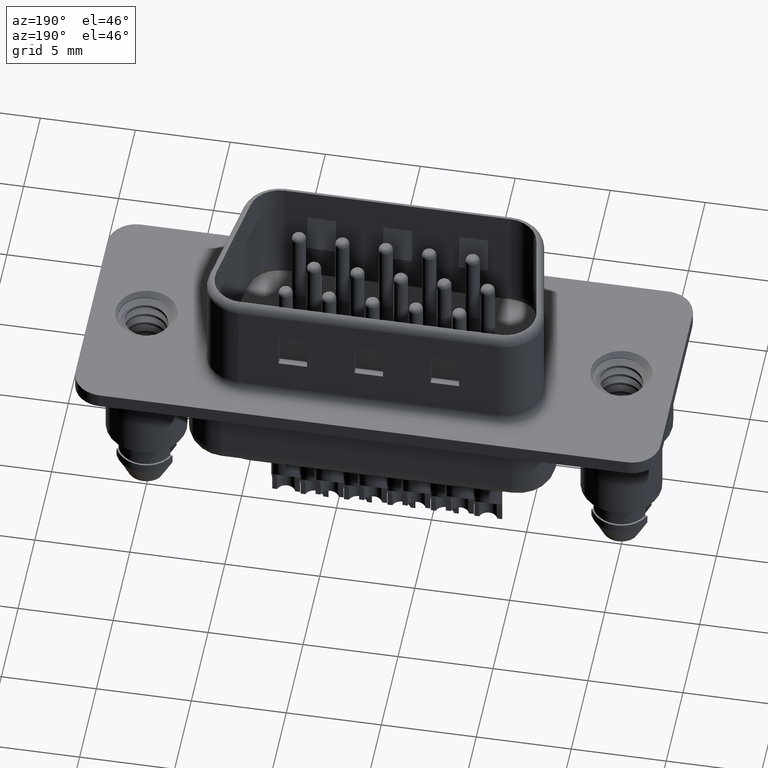
[diagram: clean part render]
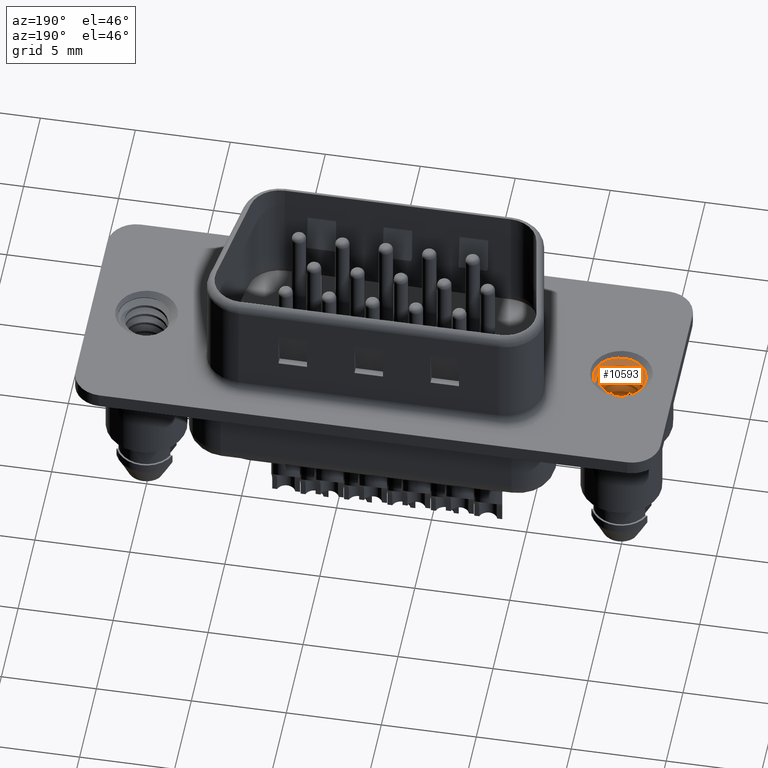
[diagram: same view with one face highlighted and labeled with its STEP entity id]
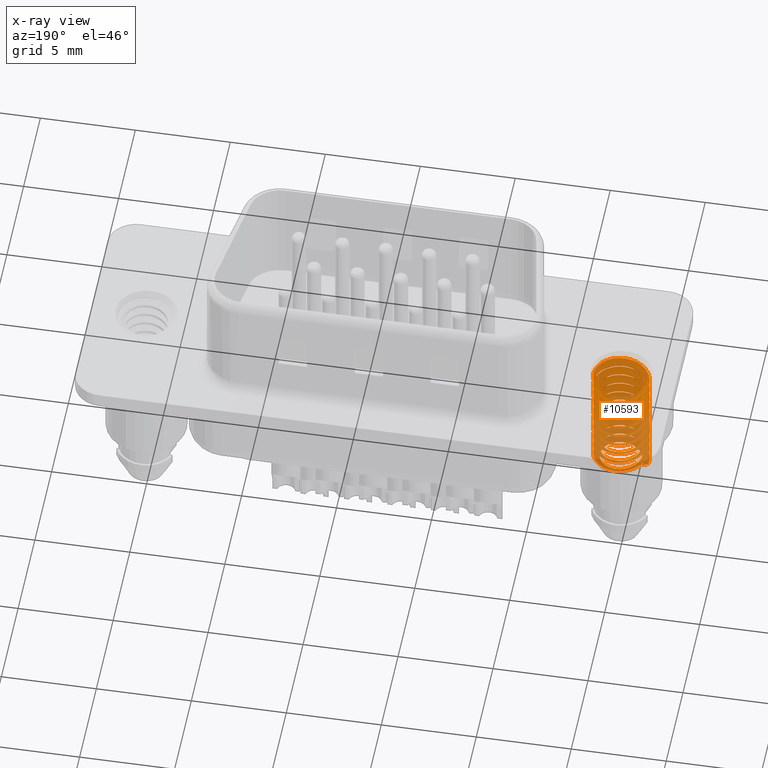
[diagram: x-ray of the same camera — body ghosted, the highlighted face saturated]
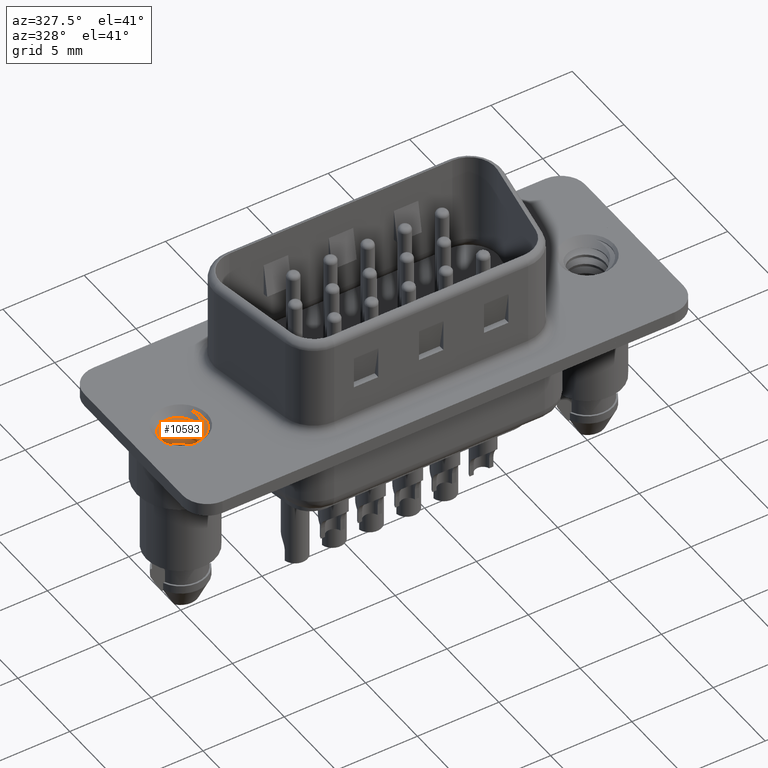
[diagram: same view with one face highlighted and labeled with its STEP entity id]
A machine part, auxiliary view. The second image highlights one B-rep face of the part: STEP entity #10593.
The next image is the same camera in x-ray: the body ghosted, the highlighted face saturated — about 49% of this face is hidden behind the body in this view.
A second angle (auxiliary view) of the same face is appended — the face is thin or edge-on in the first view.
In plain terms, the highlighted face is a freeform B-spline surface patch.
Its self-contained STEP definition (entity closure, byte-faithful):
#19 = CARTESIAN_POINT ( 'NONE',  ( -1.042194643031024300E-016, 1.702033016795766500, -3.481562499132848200 ) ) ;
#44 = ORIENTED_EDGE ( 'NONE', *, *, #10248, .T. ) ;
#71 = EDGE_CURVE ( 'NONE', #10539, #10832, #12136, .T. ) ;
#81 = CARTESIAN_POINT ( 'NONE',  ( 0.7370019153124997000, 1.276524762596824800, -4.169479165799515400 ) ) ;
#137 = CARTESIAN_POINT ( 'NONE',  ( 1.474003830624999600, 0.8510165083978837900, -4.857395832466181700 ) ) ;
#175 = CARTESIAN_POINT ( 'NONE',  ( 0.7370019153125005900, -1.276524762596824600, 0.06385416753382512600 ) ) ;
#202 = CARTESIAN_POINT ( 'NONE',  ( 1.474003830625000100, 1.805134073105843700E-016, -5.545312499132848000 ) ) ;
#233 = CARTESIAN_POINT ( 'NONE',  ( 1.474003830625000500, -0.8510165083978826800, 0.1167708342004919500 ) ) ;
#260 = CARTESIAN_POINT ( 'NONE',  ( 0.5651499999999997100, 0.9788685138975509200, 0.7120833350676368800 ) ) ;
#290 = CARTESIAN_POINT ( 'NONE',  ( 1.474003830625000100, 1.805134073105843700E-016, 0.1696875008671585600 ) ) ;
#309 = CARTESIAN_POINT ( 'NONE',  ( 1.130299999999999600, 0.6525790092650342000, 0.02416666840097015200 ) ) ;
#342 = CARTESIAN_POINT ( 'NONE',  ( 1.474003830624999400, 0.5584492019237055100, 0.2044121742158526700 ) ) ;
#369 = CARTESIAN_POINT ( 'NONE',  ( 1.130299999999999900, 1.384218277076253100E-016, -0.6637499982656963600 ) ) ;
#381 = EDGE_CURVE ( 'NONE', #663, #1301, #5783, .T. ) ;
#391 = EDGE_CURVE ( 'NONE', #10540, #11283, #2586, .T. ) ;
#398 = CARTESIAN_POINT ( 'NONE',  ( -1.457795003371809500, 0.2179931658907362500, -5.876949328183747500 ) ) ;
#428 = CARTESIAN_POINT ( 'NONE',  ( 1.130300000000000100, -0.6525790092650335400, -1.351666664932363400 ) ) ;
#480 = CARTESIAN_POINT ( 'NONE',  ( 0.5651500000000004900, -0.9788685138975504700, -2.039583331599029500 ) ) ;
#536 = CARTESIAN_POINT ( 'NONE',  ( 2.397536384661524000E-016, -1.305158018530067700, -2.727499998265696700 ) ) ;
#602 = CARTESIAN_POINT ( 'NONE',  ( -0.5651499999999990400, -0.9788685138975513600, -3.415416664932363000 ) ) ;
#663 = VERTEX_POINT ( 'NONE', #5089 ) ;
#666 = CARTESIAN_POINT ( 'NONE',  ( -1.130299999999999400, -0.6525790092650345400, -4.103333331599029200 ) ) ;
#687 = CARTESIAN_POINT ( 'NONE',  ( 1.474003830624999600, 0.8510165083978837900, 0.8576041675338181800 ) ) ;
#720 = CARTESIAN_POINT ( 'NONE',  ( -1.130299999999999900, 0.0000000000000000000, -4.791249998265696400 ) ) ;
#723 = EDGE_CURVE ( 'NONE', #16307, #3865, #13978, .T. ) ;
#732 = CARTESIAN_POINT ( 'NONE',  ( 1.474003830625000100, 1.805134073105843700E-016, 0.1696875008671515400 ) ) ;
#779 = CARTESIAN_POINT ( 'NONE',  ( -1.130299999999999900, 0.6525790092650337600, -5.479166664932362700 ) ) ;
#797 = CARTESIAN_POINT ( 'NONE',  ( 1.474003830625000300, -0.8510165083978827900, -0.5182291657995151700 ) ) ;
#839 = CARTESIAN_POINT ( 'NONE',  ( -1.117868250002315800, 0.1671785441878220800, -6.075388269916745200 ) ) ;
#1060 = CARTESIAN_POINT ( 'NONE',  ( 1.130299999999999900, 1.384218277076253100E-016, -0.6637499982656963600 ) ) ;
#1073 = CARTESIAN_POINT ( 'NONE',  ( 1.103964636983117500, 0.9767033188168795500, 0.2437038306335503900 ) ) ;
#1095 = CARTESIAN_POINT ( 'NONE',  ( 1.130299999999999900, 1.384218277076253100E-016, -5.743749998265696100 ) ) ;
#1103 = CARTESIAN_POINT ( 'NONE',  ( -0.5651500000000000400, 0.9788685138975507000, -1.722083331599029800 ) ) ;
#1154 = CARTESIAN_POINT ( 'NONE',  ( -1.474003830624999600, 0.8510165083978831200, -0.8357291657995152800 ) ) ;
#1217 = CARTESIAN_POINT ( 'NONE',  ( -0.7370019153125002600, 1.276524762596824800, -1.523645832466181900 ) ) ;
#1279 = CARTESIAN_POINT ( 'NONE',  ( -1.042194643031024300E-016, 1.702033016795766500, -2.211562499132848200 ) ) ;
#1301 = VERTEX_POINT ( 'NONE', #7719 ) ;
#1350 = CARTESIAN_POINT ( 'NONE',  ( 0.7370019153124997000, 1.276524762596824800, -2.899479165799514500 ) ) ;
#1363 = CARTESIAN_POINT ( 'NONE',  ( 1.130299999999999600, 0.6525790092650342000, -5.055833331599030700 ) ) ;
#1394 = CARTESIAN_POINT ( 'NONE',  ( 1.474003830624999600, 0.8510165083978837900, -3.587395832466181700 ) ) ;
#1462 = CARTESIAN_POINT ( 'NONE',  ( 1.474003830625000100, 1.805134073105843700E-016, -4.275312499132848400 ) ) ;
#1494 = CARTESIAN_POINT ( 'NONE',  ( 1.130299999999999900, 1.384218277076253100E-016, -1.298749998265696500 ) ) ;
#1523 = CARTESIAN_POINT ( 'NONE',  ( 1.474003830625000300, -0.8510165083978827900, -4.963229165799516500 ) ) ;
#1561 = CARTESIAN_POINT ( 'NONE',  ( 1.474003830624999600, 0.8510165083978836800, -1.682395832466175000 ) ) ;
#1585 = CARTESIAN_POINT ( 'NONE',  ( 0.7370019153125005900, -1.276524762596824600, -5.651145832466181900 ) ) ;
#1617 = CARTESIAN_POINT ( 'NONE',  ( 0.7370019153124997000, 1.276524762596824800, -1.629479165799508000 ) ) ;
#1640 = CARTESIAN_POINT ( 'NONE',  ( 1.130299999999999900, 1.384218277076253100E-016, 0.6062500017343034300 ) ) ;
#1701 = CARTESIAN_POINT ( 'NONE',  ( 1.130300000000000100, -0.6525790092650335400, -0.08166666493236304800 ) ) ;
#1736 = CARTESIAN_POINT ( 'NONE',  ( -1.042194643031024300E-016, 1.702033016795766500, -1.576562499132841700 ) ) ;
#1765 = CARTESIAN_POINT ( 'NONE',  ( 0.5651500000000004900, -0.9788685138975504700, -0.7695833315990298100 ) ) ;
#1805 = CARTESIAN_POINT ( 'NONE',  ( -0.5651499999999990400, -0.9788685138975513600, -2.145416664932363400 ) ) ;
#1817 = CARTESIAN_POINT ( 'NONE',  ( 2.397536384661524000E-016, -1.305158018530067700, -1.457499998265696700 ) ) ;
#1875 = CARTESIAN_POINT ( 'NONE',  ( -0.5651499999999990400, -0.9788685138975513600, -2.145416664932363400 ) ) ;
#1935 = CARTESIAN_POINT ( 'NONE',  ( -1.130299999999999400, -0.6525790092650345400, -2.833333331599030100 ) ) ;
#1939 = CARTESIAN_POINT ( 'NONE',  ( 0.5651500000000004900, -0.9788685138975504700, -2.674583331599029700 ) ) ;
#1993 = CARTESIAN_POINT ( 'NONE',  ( -1.130299999999999900, 0.0000000000000000000, -3.521249998265696400 ) ) ;
#2047 = CARTESIAN_POINT ( 'NONE',  ( -1.130299999999999900, 0.6525790092650337600, -4.209166664932363100 ) ) ;
#2054 = CARTESIAN_POINT ( 'NONE',  ( -1.130299999999993900, -0.6525790092650374200, -2.198333331599029400 ) ) ;
#2070 = CARTESIAN_POINT ( 'NONE',  ( 1.474003830625000300, -0.8510165083978827900, 0.7517708342004848500 ) ) ;
#2115 = CARTESIAN_POINT ( 'NONE',  ( -0.5651500000000000400, 0.9788685138975507000, -4.897083331599029400 ) ) ;
#2119 = CARTESIAN_POINT ( 'NONE',  ( 1.130299999999999900, 1.384218277076253100E-016, -2.568749998265696300 ) ) ;
#2121 = CARTESIAN_POINT ( 'NONE',  ( 2.397536384661524000E-016, -1.305158018530067700, -2.092499998265696900 ) ) ;
#2137 = CARTESIAN_POINT ( 'NONE',  ( 0.7370019153125005900, -1.276524762596824600, 0.06385416753381810400 ) ) ;
#2138 = EDGE_CURVE ( 'NONE', #663, #17008, #12689, .T. ) ;
#2181 = CARTESIAN_POINT ( 'NONE',  ( -7.991787948871746700E-017, 1.305158018530067700, -5.584999998265695700 ) ) ;
#2199 = VERTEX_POINT ( 'NONE', #3899 ) ;
#2236 = CARTESIAN_POINT ( 'NONE',  ( -7.991787948871747900E-017, 1.305158018530067700, -2.409999998265696300 ) ) ;
#2276 = VERTEX_POINT ( 'NONE', #15452 ) ;
#2323 = EDGE_CURVE ( 'NONE', #2276, #10540, #9525, .T. ) ;
#2360 = EDGE_CURVE ( 'NONE', #5728, #17008, #3131, .T. ) ;
#2391 = CARTESIAN_POINT ( 'NONE',  ( -0.7370019153125002600, 1.276524762596824800, -1.523645832466174800 ) ) ;
#2533 = CARTESIAN_POINT ( 'NONE',  ( -1.042194643031024300E-016, 1.702033016795766500, -0.9415624991328485100 ) ) ;
#2540 = CARTESIAN_POINT ( 'NONE',  ( -1.130299999999999900, 0.6525790092650337600, -1.669166664932363300 ) ) ;
#2573 = CARTESIAN_POINT ( 'NONE',  ( -1.474003830624999600, 0.8510165083978830100, -1.470729165799508100 ) ) ;
#2586 =( BOUNDED_CURVE ( )  B_SPLINE_CURVE ( 2, ( #12949, #13065, #13005, #7119, #3715, #3798, #3731 ),
 .UNSPECIFIED., .F., .F. ) 
 B_SPLINE_CURVE_WITH_KNOTS ( ( 3, 2, 2, 3 ),
 ( 0.7083333333333332600, 0.7222222222222221000, 0.7361111111111111600, 0.7500000000000000000 ),
 .UNSPECIFIED. ) 
 CURVE ( )  GEOMETRIC_REPRESENTATION_ITEM ( )  RATIONAL_B_SPLINE_CURVE ( ( 1.000000000000001100, 0.8660254037844376000, 1.000000000000000000, 0.8660254037844387100, 1.000000000000000000, 0.8660254037844387100, 1.000000000000000000 ) ) 
 REPRESENTATION_ITEM ( '' )  );
#2588 = EDGE_CURVE ( 'NONE', #17662, #7241, #14497, .T. ) ;
#2603 = CARTESIAN_POINT ( 'NONE',  ( 0.7370019153124997000, 1.276524762596824800, -1.629479165799515100 ) ) ;
#2625 = CARTESIAN_POINT ( 'NONE',  ( -1.130299999999999900, 0.0000000000000000000, -0.9812499982656964800 ) ) ;
#2661 = CARTESIAN_POINT ( 'NONE',  ( 1.474003830624999600, 0.8510165083978837900, -2.317395832466181200 ) ) ;
#2722 = CARTESIAN_POINT ( 'NONE',  ( 1.474003830625000100, 1.805134073105843700E-016, -3.005312499132848400 ) ) ;
#2785 = CARTESIAN_POINT ( 'NONE',  ( 1.474003830625000300, -0.8510165083978827900, -3.693229165799515100 ) ) ;
#2850 = CARTESIAN_POINT ( 'NONE',  ( 0.7370019153125005900, -1.276524762596824600, -4.381145832466181400 ) ) ;
#2905 = CARTESIAN_POINT ( 'NONE',  ( 3.126583929093072600E-016, -1.702033016795766500, -5.069062499132847700 ) ) ;
#2918 = EDGE_CURVE ( 'NONE', #10832, #5711, #11395, .T. ) ;
#2939 = CARTESIAN_POINT ( 'NONE',  ( 1.130299999999999900, 1.384218277076253100E-016, -1.933749998265696700 ) ) ;
#2972 = CARTESIAN_POINT ( 'NONE',  ( -0.7370019153124989200, -1.276524762596825500, -5.756979165799515700 ) ) ;
#3028 = CARTESIAN_POINT ( 'NONE',  ( 0.5651500000000004900, -0.9788685138975504700, 0.5004166684009702100 ) ) ;
#3058 = VERTEX_POINT ( 'NONE', #3437 ) ;
#3080 = CARTESIAN_POINT ( 'NONE',  ( 2.397536384661524000E-016, -1.305158018530067700, -0.1874999982656964900 ) ) ;
#3129 = CARTESIAN_POINT ( 'NONE',  ( -0.5651499999999990400, -0.9788685138975513600, -0.8754166649323632500 ) ) ;
#3131 = B_SPLINE_CURVE_WITH_KNOTS ( 'NONE', 3,
 ( #8104, #8081, #7793, #7677, #6669, #5365 ),
 .UNSPECIFIED., .F., .F.,
 ( 4, 2, 4 ),
 ( 0.001029339732813505000, 0.001462882376519646600, 0.001896425020225788000 ),
 .UNSPECIFIED. ) ;
#3183 = CARTESIAN_POINT ( 'NONE',  ( -1.130299999999999400, -0.6525790092650345400, -1.563333331599029900 ) ) ;
#3190 = CARTESIAN_POINT ( 'NONE',  ( 0.5651500000000004900, -0.9788685138975504700, -2.039583331599029500 ) ) ;
#3244 = CARTESIAN_POINT ( 'NONE',  ( -1.130299999999999900, 0.0000000000000000000, -2.251249998265695900 ) ) ;
#3252 = CARTESIAN_POINT ( 'NONE',  ( 1.130300000000000100, -0.6525790092650335400, -1.986666664932363200 ) ) ;
#3289 = CARTESIAN_POINT ( 'NONE',  ( -1.130299999999999900, 0.0000000000000000000, -2.251249998265695900 ) ) ;
#3303 = CARTESIAN_POINT ( 'NONE',  ( -1.130299999999999900, 0.6525790092650337600, -2.939166664932363600 ) ) ;
#3312 = ORIENTED_EDGE ( 'NONE', *, *, #4341, .T. ) ;
#3366 = CARTESIAN_POINT ( 'NONE',  ( -0.5651500000000000400, 0.9788685138975507000, -3.627083331599029800 ) ) ;
#3405 = CARTESIAN_POINT ( 'NONE',  ( 2.397536384661524000E-016, -1.305158018530067700, -3.362499998265696500 ) ) ;
#3429 = CARTESIAN_POINT ( 'NONE',  ( -7.991787948871746700E-017, 1.305158018530067700, -4.314999998265696100 ) ) ;
#3437 = CARTESIAN_POINT ( 'NONE',  ( -1.130299999999999900, 0.0000000000000000000, -6.061249998265696000 ) ) ;
#3446 = CARTESIAN_POINT ( 'NONE',  ( -1.130299999999999900, 0.0000000000000000000, -5.426249998265696200 ) ) ;
#3451 = CARTESIAN_POINT ( 'NONE',  ( 3.126583929093072600E-016, -1.702033016795766500, 0.6459375008671515200 ) ) ;
#3460 = CARTESIAN_POINT ( 'NONE',  ( 1.130299999999999900, 1.384218277076253100E-016, -1.933749998265696700 ) ) ;
#3476 = CARTESIAN_POINT ( 'NONE',  ( 1.130299999999999900, 1.384218277076253100E-016, -0.6637499982656963600 ) ) ;
#3497 = CARTESIAN_POINT ( 'NONE',  ( 0.5651499999999997100, 0.9788685138975509200, -5.002916664932363300 ) ) ;
#3511 = CARTESIAN_POINT ( 'NONE',  ( -0.7370019153124989200, -1.276524762596825500, -0.04197916579951510600 ) ) ;
#3542 = CARTESIAN_POINT ( 'NONE',  ( 1.130299999999999600, 0.6525790092650342000, -5.690833331599029600 ) ) ;
#3574 = CARTESIAN_POINT ( 'NONE',  ( 1.130299999999999900, 1.384218277076253100E-016, -5.743749998265696100 ) ) ;
#3606 = CARTESIAN_POINT ( 'NONE',  ( 1.130299999999999600, 0.6525790092650342000, -2.515833331599029800 ) ) ;
#3648 = CARTESIAN_POINT ( 'NONE',  ( 1.130299999999999600, 0.6525790092650342000, -1.880833331599029800 ) ) ;
#3679 =( BOUNDED_CURVE ( )  B_SPLINE_CURVE ( 2, ( #6603, #11338, #5502, #9419, #4076, #5824, #2625 ),
 .UNSPECIFIED., .F., .T. ) 
 B_SPLINE_CURVE_WITH_KNOTS ( ( 3, 2, 2, 3 ),
 ( 0.2083333333333332900, 0.2222222222222221800, 0.2361111111111110800, 0.2500000000000000000 ),
 .UNSPECIFIED. ) 
 CURVE ( )  GEOMETRIC_REPRESENTATION_ITEM ( )  RATIONAL_B_SPLINE_CURVE ( ( 1.000000000000000400, 0.8660254037844381500, 1.000000000000000000, 0.8660254037844387100, 1.000000000000000000, 0.8660254037844387100, 1.000000000000000000 ) ) 
 REPRESENTATION_ITEM ( '' )  );
#3715 = CARTESIAN_POINT ( 'NONE',  ( -0.5651499999999990400, -0.9788685138975513600, -4.685416664932363400 ) ) ;
#3731 = CARTESIAN_POINT ( 'NONE',  ( -1.130299999999999900, 0.0000000000000000000, -4.791249998265696400 ) ) ;
#3756 = CARTESIAN_POINT ( 'NONE',  ( -1.130299999999999900, 0.6525790092650337600, -0.3991666649323631400 ) ) ;
#3793 = ORIENTED_EDGE ( 'NONE', *, *, #7227, .T. ) ;
#3794 = CARTESIAN_POINT ( 'NONE',  ( -7.991787948871747900E-017, 1.305158018530067700, -1.139999998265696500 ) ) ;
#3798 = CARTESIAN_POINT ( 'NONE',  ( -1.130299999999999400, -0.6525790092650345400, -4.738333331599029900 ) ) ;
#3806 = VERTEX_POINT ( 'NONE', #14681 ) ;
#3834 = CARTESIAN_POINT ( 'NONE',  ( -1.474003830624999600, -0.8510165083978839000, -1.364895832466174900 ) ) ;
#3865 = VERTEX_POINT ( 'NONE', #4690 ) ;
#3898 = CARTESIAN_POINT ( 'NONE',  ( -0.7370019153124989200, -1.276524762596825500, -1.311979165799507900 ) ) ;
#3899 = CARTESIAN_POINT ( 'NONE',  ( 1.103964636983117500, 0.9767033188168795500, 0.2437038306335503600 ) ) ;
#3921 = CARTESIAN_POINT ( 'NONE',  ( 1.474003830624999600, 0.8510165083978837900, -1.047395832466181800 ) ) ;
#3934 = CARTESIAN_POINT ( 'NONE',  ( 1.130299999999989200, 0.6525790092650403100, -5.690833331599027800 ) ) ;
#3954 = CARTESIAN_POINT ( 'NONE',  ( 0.5651499999999997100, 0.9788685138975509200, -5.637916664932363100 ) ) ;
#3984 = CARTESIAN_POINT ( 'NONE',  ( 1.474003830625000100, 1.805134073105843700E-016, -1.735312499132848800 ) ) ;
#4017 = CARTESIAN_POINT ( 'NONE',  ( -7.991787948871747900E-017, 1.305158018530067700, -5.584999998265695700 ) ) ;
#4045 = CARTESIAN_POINT ( 'NONE',  ( 1.474003830625000300, -0.8510165083978827900, -2.423229165799516000 ) ) ;
#4076 = CARTESIAN_POINT ( 'NONE',  ( -0.5651499999999990400, -0.9788685138975513600, -0.8754166649323632500 ) ) ;
#4092 = EDGE_CURVE ( 'NONE', #16687, #2276, #13211, .T. ) ;
#4109 = CARTESIAN_POINT ( 'NONE',  ( 0.7370019153125005900, -1.276524762596824600, -3.111145832466181800 ) ) ;
#4160 = CARTESIAN_POINT ( 'NONE',  ( 3.126583929093072600E-016, -1.702033016795766500, -3.799062499132848500 ) ) ;
#4198 = EDGE_CURVE ( 'NONE', #2199, #5728, #10073, .T. ) ;
#4224 = CARTESIAN_POINT ( 'NONE',  ( -0.7370019153124989200, -1.276524762596825500, -4.486979165799515300 ) ) ;
#4254 = EDGE_CURVE ( 'NONE', #2199, #3865, #6885, .T. ) ;
#4256 = CARTESIAN_POINT ( 'NONE',  ( 0.5651500000000004900, -0.9788685138975504700, -1.404583331599029700 ) ) ;
#4258 = CARTESIAN_POINT ( 'NONE',  ( -1.130299999999999900, 0.0000000000000000000, -5.426249998265696200 ) ) ;
#4288 = CARTESIAN_POINT ( 'NONE',  ( -1.474003830624999600, -0.8510165083978839000, -5.174895832466181600 ) ) ;
#4341 = EDGE_CURVE ( 'NONE', #6591, #12982, #3679, .T. ) ;
#4351 = CARTESIAN_POINT ( 'NONE',  ( -1.474003830625000100, 0.0000000000000000000, -5.862812499132847900 ) ) ;
#4394 = CARTESIAN_POINT ( 'NONE',  ( -0.5651499999999990400, -0.9788685138975513600, 0.3945833350676368200 ) ) ;
#4454 = CARTESIAN_POINT ( 'NONE',  ( -1.130299999999999400, -0.6525790092650345400, -0.2933333315990297500 ) ) ;
#4489 = CARTESIAN_POINT ( 'NONE',  ( 1.130299999999999900, 1.384218277076253100E-016, -3.203749998265696500 ) ) ;
#4492 = CARTESIAN_POINT ( 'NONE',  ( -1.474003830624999600, 0.8510165083978830100, -4.010729165799507900 ) ) ;
#4517 = CARTESIAN_POINT ( 'NONE',  ( -1.130299999999999900, 0.0000000000000000000, -0.9812499982656964800 ) ) ;
#4553 = CARTESIAN_POINT ( 'NONE',  ( -1.474003830624999600, -0.8510165083978839000, -5.174895832466174500 ) ) ;
#4573 = CARTESIAN_POINT ( 'NONE',  ( -1.130299999999999900, 0.6525790092650337600, -1.669166664932363300 ) ) ;
#4618 = CARTESIAN_POINT ( 'NONE',  ( -0.5651500000000000400, 0.9788685138975507000, -2.357083331599029800 ) ) ;
#4645 = ORIENTED_EDGE ( 'NONE', *, *, #13446, .T. ) ;
#4682 = CARTESIAN_POINT ( 'NONE',  ( -7.991787948871746700E-017, 1.305158018530067700, -3.044999998265696100 ) ) ;
#4690 = CARTESIAN_POINT ( 'NONE',  ( -1.457795003371809500, 0.2179931658907362500, -5.876949328183747500 ) ) ;
#4704 = CARTESIAN_POINT ( 'NONE',  ( -1.130299999999999900, 0.0000000000000000000, -1.616249998265696600 ) ) ;
#4724 = CARTESIAN_POINT ( 'NONE',  ( 1.130299999999999900, 1.384218277076253100E-016, -3.203749998265696500 ) ) ;
#4747 = CARTESIAN_POINT ( 'NONE',  ( 0.5651499999999997100, 0.9788685138975509200, -3.732916664932362800 ) ) ;
#4778 = CARTESIAN_POINT ( 'NONE',  ( -1.130299999999993900, -0.6525790092650374200, -3.468333331599029000 ) ) ;
#4796 = CARTESIAN_POINT ( 'NONE',  ( 1.130299999999999600, 0.6525790092650342000, -4.420833331599029100 ) ) ;
#4815 = CARTESIAN_POINT ( 'NONE',  ( -1.474003830624999600, -0.8510165083978839000, 0.5401041675338182900 ) ) ;
#4862 = CARTESIAN_POINT ( 'NONE',  ( 1.130299999999999900, 1.384218277076253100E-016, -5.108749998265697200 ) ) ;
#4865 = CARTESIAN_POINT ( 'NONE',  ( 1.298879314123539500, 2.954045521221385000E-012, 0.06857931412353945900 ) ) ;
#4876 = EDGE_CURVE ( 'NONE', #7477, #16687, #5557, .T. ) ;
#4882 = CARTESIAN_POINT ( 'NONE',  ( -1.474003830625000100, 0.0000000000000000000, -0.1478124991328485500 ) ) ;
#4904 = ORIENTED_EDGE ( 'NONE', *, *, #2323, .T. ) ;
#4924 = CARTESIAN_POINT ( 'NONE',  ( 1.130300000000000100, -0.6525790092650335400, -5.796666664932363500 ) ) ;
#5089 = CARTESIAN_POINT ( 'NONE',  ( 0.8429488792815154100, -0.7530041487299352600, -0.1017193660222401900 ) ) ;
#5122 = CARTESIAN_POINT ( 'NONE',  ( -1.130300000000010300, 0.6525790092650277700, -5.479166664932361800 ) ) ;
#5146 = CARTESIAN_POINT ( 'NONE',  ( -0.7370019153124989200, -1.276524762596825500, -5.121979165799508000 ) ) ;
#5164 = CARTESIAN_POINT ( 'NONE',  ( 1.130299999999997000, 0.6525790092650358700, -1.245833331599029300 ) ) ;
#5180 = CARTESIAN_POINT ( 'NONE',  ( -0.5651500000000000400, 0.9788685138975507000, -5.532083331599029200 ) ) ;
#5245 = EDGE_CURVE ( 'NONE', #7241, #3058, #16923, .T. ) ;
#5246 = ORIENTED_EDGE ( 'NONE', *, *, #4092, .T. ) ;
#5248 = ORIENTED_EDGE ( 'NONE', *, *, #12092, .T. ) ;
#5263 = CARTESIAN_POINT ( 'NONE',  ( -1.130299999999999400, -0.6525790092650345400, -2.833333331599029700 ) ) ;
#5284 = CARTESIAN_POINT ( 'NONE',  ( 1.474003830625000300, -0.8510165083978827900, -1.153229165799515300 ) ) ;
#5352 = CARTESIAN_POINT ( 'NONE',  ( 0.7370019153125005900, -1.276524762596824600, -1.841145832466181800 ) ) ;
#5365 = CARTESIAN_POINT ( 'NONE',  ( 0.8741513560333582500, -0.7165455294436970900, -0.09918412080068926600 ) ) ;
#5397 = ORIENTED_EDGE ( 'NONE', *, *, #4876, .T. ) ;
#5423 = CARTESIAN_POINT ( 'NONE',  ( 3.126583929093072600E-016, -1.702033016795766500, -2.529062499132848100 ) ) ;
#5439 = CARTESIAN_POINT ( 'NONE',  ( -1.130299999999999900, 0.0000000000000000000, -4.791249998265696400 ) ) ;
#5452 = CARTESIAN_POINT ( 'NONE',  ( -0.7370019153124989200, -1.276524762596825500, -4.486979165799508200 ) ) ;
#5484 = CARTESIAN_POINT ( 'NONE',  ( -0.7370019153124989200, -1.276524762596825500, -3.216979165799514800 ) ) ;
#5502 = CARTESIAN_POINT ( 'NONE',  ( 0.5651500000000004900, -0.9788685138975504700, -0.7695833315990298100 ) ) ;
#5510 = EDGE_CURVE ( 'NONE', #17065, #5611, #13754, .T. ) ;
#5541 = CARTESIAN_POINT ( 'NONE',  ( -1.474003830624999600, -0.8510165083978839000, -3.904895832466181500 ) ) ;
#5557 =( BOUNDED_CURVE ( )  B_SPLINE_CURVE ( 2, ( #9702, #9643, #9575, #8212, #8146, #8080, #14481 ),
 .UNSPECIFIED., .F., .F. ) 
 B_SPLINE_CURVE_WITH_KNOTS ( ( 3, 2, 2, 3 ),
 ( 0.5833333333333332600, 0.5972222222222221000, 0.6111111111111111600, 0.6250000000000000000 ),
 .UNSPECIFIED. ) 
 CURVE ( )  GEOMETRIC_REPRESENTATION_ITEM ( )  RATIONAL_B_SPLINE_CURVE ( ( 1.000000000000001100, 0.8660254037844376000, 1.000000000000000000, 0.8660254037844387100, 1.000000000000000000, 0.8660254037844387100, 1.000000000000000000 ) ) 
 REPRESENTATION_ITEM ( '' )  );
#5603 = CARTESIAN_POINT ( 'NONE',  ( -1.474003830625000100, 0.0000000000000000000, -4.592812499132848300 ) ) ;
#5611 = VERTEX_POINT ( 'NONE', #8178 ) ;
#5631 = CARTESIAN_POINT ( 'NONE',  ( -0.5651499999999990400, -0.9788685138975513600, -1.510416664932362900 ) ) ;
#5660 = CARTESIAN_POINT ( 'NONE',  ( -1.474003830624999600, 0.8510165083978831200, -5.280729165799515500 ) ) ;
#5711 = VERTEX_POINT ( 'NONE', #7763 ) ;
#5717 = CARTESIAN_POINT ( 'NONE',  ( -1.457791809818171200, 0.2180145222782983400, -5.876950770783897000 ) ) ;
#5728 = VERTEX_POINT ( 'NONE', #4865 ) ;
#5760 = CARTESIAN_POINT ( 'NONE',  ( -1.474003830625000100, 0.0000000000000000000, -1.417812499132841400 ) ) ;
#5782 = CARTESIAN_POINT ( 'NONE',  ( -1.130299999999999900, 0.0000000000000000000, 0.2887500017343034900 ) ) ;
#5783 =( BOUNDED_CURVE ( )  B_SPLINE_CURVE ( 2, ( #10621, #11189, #15457, #8900, #10641, #11957, #11938 ),
 .UNSPECIFIED., .F., .F. ) 
 B_SPLINE_CURVE_WITH_KNOTS ( ( 3, 2, 2, 3 ),
 ( 0.1346152161713287400, 0.1388888888888889000, 0.1527777777777777900, 0.1666666666666666600 ),
 .UNSPECIFIED. ) 
 CURVE ( )  GEOMETRIC_REPRESENTATION_ITEM ( )  RATIONAL_B_SPLINE_CURVE ( ( 0.9429208156800006300, 0.9587754224781340800, 1.000000000000000000, 0.8660254037844387100, 1.000000000000000000, 0.8660254037844387100, 1.000000000000000000 ) ) 
 REPRESENTATION_ITEM ( '' )  );
#5824 = CARTESIAN_POINT ( 'NONE',  ( -1.130299999999999400, -0.6525790092650345400, -0.9283333315990298700 ) ) ;
#5826 = CARTESIAN_POINT ( 'NONE',  ( 1.474003830625000100, 1.805134073105843700E-016, -1.100312499132841700 ) ) ;
#5857 = CARTESIAN_POINT ( 'NONE',  ( -1.130299999999999900, 0.6525790092650337600, -0.3991666649323631400 ) ) ;
#5862 = CARTESIAN_POINT ( 'NONE',  ( -7.991787948871747900E-017, 1.305158018530067700, -3.044999998265696100 ) ) ;
#5887 = CARTESIAN_POINT ( 'NONE',  ( 1.474003830624999600, 0.8510165083978836800, -5.492395832466174400 ) ) ;
#5911 = CARTESIAN_POINT ( 'NONE',  ( -0.5651500000000000400, 0.9788685138975507000, -1.087083331599029600 ) ) ;
#5912 = CARTESIAN_POINT ( 'NONE',  ( -1.130299999999999900, 0.0000000000000000000, -6.061249998265696000 ) ) ;
#5974 = CARTESIAN_POINT ( 'NONE',  ( -7.991787948871746700E-017, 1.305158018530067700, -1.774999998265696500 ) ) ;
#6033 = CARTESIAN_POINT ( 'NONE',  ( 0.5651499999999997100, 0.9788685138975509200, -2.462916664932363300 ) ) ;
#6094 = CARTESIAN_POINT ( 'NONE',  ( 1.130299999999999600, 0.6525790092650342000, -3.150833331599030000 ) ) ;
#6122 =( BOUNDED_CURVE ( )  B_SPLINE_CURVE ( 2, ( #7892, #17401, #12013, #3794, #13342, #5164, #14691 ),
 .UNSPECIFIED., .F., .T. ) 
 B_SPLINE_CURVE_WITH_KNOTS ( ( 3, 2, 2, 3 ),
 ( 0.2500000000000000000, 0.2638888888888889000, 0.2777777777777777300, 0.2916666666666666300 ),
 .UNSPECIFIED. ) 
 CURVE ( )  GEOMETRIC_REPRESENTATION_ITEM ( )  RATIONAL_B_SPLINE_CURVE ( ( 1.000000000000000000, 0.8660254037844387100, 1.000000000000000000, 0.8660254037844387100, 1.000000000000000000, 0.8660254037844392600, 0.9999999999999994400 ) ) 
 REPRESENTATION_ITEM ( '' )  );
#6147 = CARTESIAN_POINT ( 'NONE',  ( 1.130299999999999900, 1.384218277076253100E-016, -3.838749998265696300 ) ) ;
#6166 = CARTESIAN_POINT ( 'NONE',  ( -1.474003830624999600, 0.8510165083978831200, 1.069270834200484900 ) ) ;
#6206 = CARTESIAN_POINT ( 'NONE',  ( 1.130300000000000100, -0.6525790092650335400, -4.526666664932363000 ) ) ;
#6224 = CARTESIAN_POINT ( 'NONE',  ( -1.474003830624999600, 0.8510165083978831200, 0.4342708342004849000 ) ) ;
#6263 = CARTESIAN_POINT ( 'NONE',  ( 0.5651500000000004900, -0.9788685138975504700, -5.214583331599029300 ) ) ;
#6282 = CARTESIAN_POINT ( 'NONE',  ( -0.7370019153125002600, 1.276524762596824800, -0.2536458324661817800 ) ) ;
#6317 = CARTESIAN_POINT ( 'NONE',  ( 2.397536384661524000E-016, -1.305158018530067700, -5.902499998265695600 ) ) ;
#6355 = EDGE_CURVE ( 'NONE', #3806, #17662, #7438, .T. ) ;
#6538 = CARTESIAN_POINT ( 'NONE',  ( 1.474003830624999600, 0.8510165083978836800, -1.047395832466174700 ) ) ;
#6591 = VERTEX_POINT ( 'NONE', #3476 ) ;
#6603 = CARTESIAN_POINT ( 'NONE',  ( 1.130299999999999900, 1.384218277076253100E-016, -0.6637499982656963600 ) ) ;
#6629 = CARTESIAN_POINT ( 'NONE',  ( 0.7370019153125005900, -1.276524762596824600, -0.5711458324661817800 ) ) ;
#6649 = CARTESIAN_POINT ( 'NONE',  ( -1.130299999999999900, 0.0000000000000000000, -6.061249998265696000 ) ) ;
#6669 = CARTESIAN_POINT ( 'NONE',  ( 0.9882637210659628300, -0.6297424149606669600, -0.06684912951108811000 ) ) ;
#6698 = CARTESIAN_POINT ( 'NONE',  ( 3.126583929093072600E-016, -1.702033016795766500, -1.259062499132848500 ) ) ;
#6751 = CARTESIAN_POINT ( 'NONE',  ( -0.7370019153124989200, -1.276524762596825500, -1.946979165799515000 ) ) ;
#6808 = CARTESIAN_POINT ( 'NONE',  ( -1.474003830624999600, -0.8510165083978839000, -2.634895832466182000 ) ) ;
#6845 = CARTESIAN_POINT ( 'NONE',  ( 1.298879314123539500, 2.954045521221385000E-012, 0.06857931412353945900 ) ) ;
#6870 = CARTESIAN_POINT ( 'NONE',  ( -1.474003830625000100, 0.0000000000000000000, -3.322812499132848300 ) ) ;
#6885 =( BOUNDED_CURVE ( )  B_SPLINE_CURVE ( 2, ( #1073, #342, #290, #233, #175, #16764, #16163, #16048, #15312, #14964, #14668, #16523, #14032, #13510, #12629, #12693, #10742, #10981, #8521, #8293, #12337, #8107, #9420, #7868, #7151, #6538, #5826, #12286, #10808, #9770, #3898, #3834, #5760, #2573, #2391, #1736, #1617, #1561, #11320, #17618, #17574, #17510, #17441, #16714, #16465, #16403, #16342, #16293, #16223, #16099, #15982, #15375, #15249, #15198, #15075, #14729, #13924, #13865, #13682, #13626, #13444, #13380, #12572, #12512, #12219, #12052, #11222, #11160, #11095, #10919, #10854, #10680, #9960, #9903, #9839, #9726, #9598, #9542, #9479, #17250, #14030, #4492, #8585, #10918, #10903, #16147, #11808, #11159, #16098, #13923, #5452, #7623, #8875, #15074, #16328, #6908, #11093, #14777, #8157, #11035, #7260, #11689, #5146, #4553, #13564, #13509, #17079, #13095, #13625, #5887, #12927, #17509, #12051, #12745, #8698, #15663, #9540, #10076, #398 ),
 .UNSPECIFIED., .F., .T. ) 
 B_SPLINE_CURVE_WITH_KNOTS ( ( 3, 2, 2, 2, 2, 2, 2, 2, 2, 2, 2, 2, 2, 2, 2, 2, 2, 2, 2, 2, 2, 2, 2, 2, 2, 2, 2, 2, 2, 2, 2, 2, 2, 2, 2, 2, 2, 2, 2, 2, 2, 2, 2, 2, 2, 2, 2, 2, 2, 2, 2, 2, 2, 2, 2, 2, 2, 2, 2, 3 ),
 ( 0.1256633576752624900, 0.1360630803680703300, 0.1511812003914213000, 0.1662993204147723000, 0.1814174404381232500, 0.1965355604614742500, 0.2116536804848252200, 0.2267718005081761900, 0.2418899205315271400, 0.2570080405548781400, 0.2721261605782291400, 0.2872442806015801400, 0.3023624006249310800, 0.3174805206482820800, 0.3325986406716330800, 0.3477167606949839700, 0.3628348807183349700, 0.3779530007416859700, 0.3930711207650369200, 0.4081892407883879200, 0.4233073608117389200, 0.4384254808350898600, 0.4535436008584408700, 0.4686617208817918700, 0.4837798409051428100, 0.4988979609284938100, 0.5140160809518448100, 0.5291342009751957000, 0.5442523209985467000, 0.5593704410218975900, 0.5744885610452487000, 0.5896066810685995900, 0.6047248010919505900, 0.6198429211153015900, 0.6349610411386525900, 0.6500791611620035900, 0.6651972811853545900, 0.6803154012087054800, 0.6954335212320563700, 0.7105516412554076000, 0.7256697612787584900, 0.7407878813021093700, 0.7559060013254603700, 0.7710241213488114900, 0.7861422413721623800, 0.8012603613955133800, 0.8163784814188641500, 0.8314966014422151600, 0.8466147214655663800, 0.8617328414889173800, 0.8768509615122681600, 0.8919690815356190500, 0.9070872015589703800, 0.9222053215823211600, 0.9373234416056721600, 0.9524415616290230500, 0.9675596816523739400, 0.9826778016757251600, 0.9977959216990760500, 1.000000000000000000 ),
 .UNSPECIFIED. ) 
 CURVE ( )  GEOMETRIC_REPRESENTATION_ITEM ( )  RATIONAL_B_SPLINE_CURVE ( ( 0.9424728123277055200, 0.9078391594741480600, 1.000000000000000000, 0.8660254037844387100, 1.000000000000000000, 0.8660254037844387100, 1.000000000000000000, 0.8660254037844387100, 1.000000000000000000, 0.8660254037844387100, 1.000000000000000000, 0.8660254037844387100, 1.000000000000000000, 0.8660254037844387100, 1.000000000000000000, 0.8660254037844387100, 1.000000000000000000, 0.8660254037844387100, 1.000000000000000000, 0.8660254037844387100, 1.000000000000000000, 0.8660254037844387100, 1.000000000000000000, 0.8660254037844387100, 1.000000000000000000, 0.8660254037844387100, 1.000000000000000000, 0.8660254037844387100, 1.000000000000000000, 0.8660254037844387100, 1.000000000000000000, 0.8660254037844387100, 1.000000000000000000, 0.8660254037844387100, 1.000000000000000000, 0.8660254037844387100, 1.000000000000000000, 0.8660254037844387100, 1.000000000000000000, 0.8660254037844387100, 1.000000000000000000, 0.8660254037844387100, 1.000000000000000000, 0.8660254037844387100, 1.000000000000000000, 0.8660254037844387100, 1.000000000000000000, 0.8660254037844387100, 1.000000000000000000, 0.8660254037844387100, 1.000000000000000000, 0.8660254037844387100, 1.000000000000000000, 0.8660254037844387100, 1.000000000000000000, 0.8660254037844387100, 1.000000000000000000, 0.8660254037844387100, 1.000000000000000000, 0.8660254037844387100, 1.000000000000000000, 0.8660254037844387100, 1.000000000000000000, 0.8660254037844387100, 1.000000000000000000, 0.8660254037844387100, 1.000000000000000000, 0.8660254037844387100, 1.000000000000000000, 0.8660254037844387100, 1.000000000000000000, 0.8660254037844387100, 1.000000000000000000, 0.8660254037844387100, 1.000000000000000000, 0.8660254037844387100, 1.000000000000000000, 0.8660254037844387100, 1.000000000000000000, 0.8660254037844387100, 1.000000000000000000, 0.8660254037844387100, 1.000000000000000000, 0.8660254037844387100, 1.000000000000000000, 0.8660254037844387100, 1.000000000000000000, 0.8660254037844387100, 1.000000000000000000, 0.8660254037844387100, 1.000000000000000000, 0.8660254037844387100, 1.000000000000000000, 0.8660254037844387100, 1.000000000000000000, 0.8660254037844387100, 1.000000000000000000, 0.8660254037844387100, 1.000000000000000000, 0.8660254037844387100, 1.000000000000000000, 0.8660254037844387100, 1.000000000000000000, 0.8660254037844387100, 1.000000000000000000, 0.8660254037844387100, 1.000000000000000000, 0.8660254037844387100, 1.000000000000000000, 0.8660254037844387100, 1.000000000000000000, 0.8660254037844387100, 1.000000000000000000, 0.8660254037844387100, 1.000000000000000000, 0.8660254037844387100, 1.000000000000000000, 0.9804677861573940500, 0.9666307919813501600 ) ) 
 REPRESENTATION_ITEM ( '' )  );
#6908 = CARTESIAN_POINT ( 'NONE',  ( -1.042194643031024300E-016, 1.702033016795766500, -4.751562499132840700 ) ) ;
#6909 = CARTESIAN_POINT ( 'NONE',  ( 1.326806623320322400, 0.1672728219858325400, 0.09650662332067187800 ) ) ;
#6938 = CARTESIAN_POINT ( 'NONE',  ( -1.474003830624999600, 0.8510165083978831200, -4.010729165799515000 ) ) ;
#6984 = CARTESIAN_POINT ( 'NONE',  ( -0.7370019153125002600, 1.276524762596824800, -4.698645832466181300 ) ) ;
#7017 = CARTESIAN_POINT ( 'NONE',  ( -1.130299999999999900, 0.0000000000000000000, -1.616249998265696600 ) ) ;
#7021 = CARTESIAN_POINT ( 'NONE',  ( 1.324280009454804400, 0.3390545062499804000, 0.1264246360900908900 ) ) ;
#7050 = CARTESIAN_POINT ( 'NONE',  ( -1.042194643031024300E-016, 1.702033016795766500, -5.386562499132847600 ) ) ;
#7089 = CARTESIAN_POINT ( 'NONE',  ( 1.257901493661823400, 0.6723056875068277300, 0.1861523789151644800 ) ) ;
#7117 = CARTESIAN_POINT ( 'NONE',  ( -1.130299999999999900, 0.6525790092650337600, 0.8708333350676368300 ) ) ;
#7119 = CARTESIAN_POINT ( 'NONE',  ( 2.397536384661524000E-016, -1.305158018530067700, -4.632499998265696900 ) ) ;
#7151 = CARTESIAN_POINT ( 'NONE',  ( 0.7370019153124997000, 1.276524762596824800, -0.9944791657995083500 ) ) ;
#7169 = CARTESIAN_POINT ( 'NONE',  ( -0.5651500000000000400, 0.9788685138975507000, 0.1829166684009701800 ) ) ;
#7198 = CARTESIAN_POINT ( 'NONE',  ( 1.103964636983117500, 0.9767033188168795500, 0.2437038306335503600 ) ) ;
#7206 =( BOUNDED_SURFACE ( )  B_SPLINE_SURFACE ( 1, 2, ( 
 ( #15651, #6166, #7558, #17062, #8916, #687, #10301, #2070, #11673, #3451, #13022, #4815, #14368, #6224, #15706, #7612, #17131, #8981, #732, #10371, #2137, #11729, #3511, #13080, #4882, #14413, #6282, #15770, #7662, #17183, #9045, #797, #6629, #16123, #8020, #17536, #9382, #1154, #10773, #2533, #12117, #3921, #13473, #5284, #14812, #6698, #16192, #8065, #17595, #9446, #1217, #10823, #2603, #12182, #3984, #13541, #5352, #14871, #6751, #16255, #8136, #17642, #9511, #1279, #10885, #2661, #12251, #4045, #13588, #5423, #14932, #6808, #16312, #8202, #17699, #9562, #1350, #10944, #2722, #12308, #4109, #13651, #5484, #14995, #6870, #16372, #8261, #19, #9632, #1394, #11012, #2785, #12364, #4160, #13714, #5541, #15041, #6938, #16427, #8317, #81, #9691, #1462, #11061, #2850, #12430, #4224, #13765, #5603, #15103, #6984, #16494, #8381, #137, #9744, #1523, #11123, #2905, #12486, #4288, #13830, #5660, #15159, #7050, #16548, #8442, #202, #9800, #1585, #11188, #2972, #12531, #4351, #13890, #5717 ),
 ( #15217, #7117, #16611, #8487, #260, #9868, #1640, #11244, #3028, #12597, #4394, #13949, #5782, #15274, #7169, #16674, #8550, #309, #9930, #1701, #11293, #3080, #12657, #4454, #13996, #5857, #15340, #7224, #16736, #8608, #369, #9978, #1765, #11363, #3129, #12715, #4517, #14059, #5911, #15407, #7289, #16789, #8670, #428, #10036, #1817, #11427, #3183, #12770, #4573, #14113, #5974, #15455, #7360, #16854, #8720, #480, #10102, #1875, #11469, #3244, #12836, #4618, #14173, #6033, #15515, #7407, #16919, #8779, #536, #10166, #1935, #11534, #3303, #12894, #4682, #14224, #6094, #15571, #7470, #16973, #8843, #602, #10219, #1993, #11600, #3366, #12948, #4747, #14288, #6147, #15632, #7536, #17040, #8899, #666, #10283, #2047, #11657, #3429, #13003, #4796, #14352, #6206, #15682, #7595, #17110, #8959, #720, #10349, #2115, #11711, #3497, #13063, #4862, #14399, #6263, #15752, #7645, #17170, #9024, #779, #10407, #2181, #11774, #3542, #13120, #4924, #14452, #6317, #15811, #7703, #17211, #9091, #839 ) ),
 .UNSPECIFIED., .F., .F., .F. ) 
 B_SPLINE_SURFACE_WITH_KNOTS ( ( 2, 2 ),
 ( 3, 2, 2, 2, 2, 2, 2, 2, 2, 2, 2, 2, 2, 2, 2, 2, 2, 2, 2, 2, 2, 2, 2, 2, 2, 2, 2, 2, 2, 2, 2, 2, 2, 2, 2, 2, 2, 2, 2, 2, 2, 2, 2, 2, 2, 2, 2, 2, 2, 2, 2, 2, 2, 2, 2, 2, 2, 2, 2, 2, 2, 2, 2, 2, 2, 2, 2, 3 ),
 ( 0.0000000000000000000, 1.000000000000000000 ),
 ( 0.0000000000000000000, 0.01388888888888888800, 0.02777777777777777600, 0.04166666666666666400, 0.05555555555555555200, 0.06944444444444444800, 0.08333333333333332900, 0.09722222222222222400, 0.1111111111111111000, 0.1250000000000000000, 0.1388888888888889000, 0.1527777777777777900, 0.1666666666666666600, 0.1805555555555555500, 0.1944444444444444500, 0.2083333333333333400, 0.2222222222222222100, 0.2361111111111111000, 0.2500000000000000000, 0.2638888888888889000, 0.2777777777777777900, 0.2916666666666666900, 0.3055555555555555800, 0.3194444444444444200, 0.3333333333333333100, 0.3472222222222222100, 0.3611111111111111000, 0.3750000000000000000, 0.3888888888888889000, 0.4027777777777777900, 0.4166666666666666900, 0.4305555555555555800, 0.4444444444444444200, 0.4583333333333333100, 0.4722222222222222100, 0.4861111111111111000, 0.5000000000000000000, 0.5138888888888888400, 0.5277777777777777900, 0.5416666666666666300, 0.5555555555555555800, 0.5694444444444444200, 0.5833333333333333700, 0.5972222222222222100, 0.6111111111111111600, 0.6250000000000000000, 0.6388888888888888400, 0.6527777777777777900, 0.6666666666666666300, 0.6805555555555555800, 0.6944444444444444200, 0.7083333333333333700, 0.7222222222222222100, 0.7361111111111111600, 0.7500000000000000000, 0.7638888888888888400, 0.7777777777777777900, 0.7916666666666666300, 0.8055555555555555800, 0.8194444444444444200, 0.8333333333333333700, 0.8472222222222222100, 0.8611111111111111600, 0.8750000000000000000, 0.8888888888888888400, 0.9027777777777777900, 0.9166666666666666300, 0.9186919270928216600 ),
 .UNSPECIFIED. ) 
 GEOMETRIC_REPRESENTATION_ITEM ( )  RATIONAL_B_SPLINE_SURFACE ( (
 ( 1.000000000000000000, 0.8660254037844387100, 1.000000000000000000, 0.8660254037844387100, 1.000000000000000000, 0.8660254037844387100, 1.000000000000000000, 0.8660254037844387100, 1.000000000000000000, 0.8660254037844387100, 1.000000000000000000, 0.8660254037844387100, 1.000000000000000000, 0.8660254037844387100, 1.000000000000000000, 0.8660254037844387100, 1.000000000000000000, 0.8660254037844387100, 1.000000000000000000, 0.8660254037844387100, 1.000000000000000000, 0.8660254037844387100, 1.000000000000000000, 0.8660254037844387100, 1.000000000000000000, 0.8660254037844387100, 1.000000000000000000, 0.8660254037844387100, 1.000000000000000000, 0.8660254037844387100, 1.000000000000000000, 0.8660254037844387100, 1.000000000000000000, 0.8660254037844387100, 1.000000000000000000, 0.8660254037844387100, 1.000000000000000000, 0.8660254037844387100, 1.000000000000000000, 0.8660254037844387100, 1.000000000000000000, 0.8660254037844387100, 1.000000000000000000, 0.8660254037844387100, 1.000000000000000000, 0.8660254037844387100, 1.000000000000000000, 0.8660254037844387100, 1.000000000000000000, 0.8660254037844387100, 1.000000000000000000, 0.8660254037844387100, 1.000000000000000000, 0.8660254037844387100, 1.000000000000000000, 0.8660254037844387100, 1.000000000000000000, 0.8660254037844387100, 1.000000000000000000, 0.8660254037844387100, 1.000000000000000000, 0.8660254037844387100, 1.000000000000000000, 0.8660254037844387100, 1.000000000000000000, 0.8660254037844387100, 1.000000000000000000, 0.8660254037844387100, 1.000000000000000000, 0.8660254037844387100, 1.000000000000000000, 0.8660254037844387100, 1.000000000000000000, 0.8660254037844387100, 1.000000000000000000, 0.8660254037844387100, 1.000000000000000000, 0.8660254037844387100, 1.000000000000000000, 0.8660254037844387100, 1.000000000000000000, 0.8660254037844387100, 1.000000000000000000, 0.8660254037844387100, 1.000000000000000000, 0.8660254037844387100, 1.000000000000000000, 0.8660254037844387100, 1.000000000000000000, 0.8660254037844387100, 1.000000000000000000, 0.8660254037844387100, 1.000000000000000000, 0.8660254037844387100, 1.000000000000000000, 0.8660254037844387100, 1.000000000000000000, 0.8660254037844387100, 1.000000000000000000, 0.8660254037844387100, 1.000000000000000000, 0.8660254037844387100, 1.000000000000000000, 0.8660254037844387100, 1.000000000000000000, 0.8660254037844387100, 1.000000000000000000, 0.8660254037844387100, 1.000000000000000000, 0.8660254037844387100, 1.000000000000000000, 0.8660254037844387100, 1.000000000000000000, 0.8660254037844387100, 1.000000000000000000, 0.8660254037844387100, 1.000000000000000000, 0.8660254037844387100, 1.000000000000000000, 0.8660254037844387100, 1.000000000000000000, 0.8660254037844387100, 1.000000000000000000, 0.8660254037844387100, 1.000000000000000000, 0.8660254037844387100, 1.000000000000000000, 0.8660254037844387100, 1.000000000000000000, 0.8660254037844387100, 1.000000000000000000, 0.8660254037844387100, 1.000000000000000000, 0.9804639917565658400, 0.9666254161439187300),
 ( 1.000000000000000000, 0.8660254037844387100, 1.000000000000000000, 0.8660254037844387100, 1.000000000000000000, 0.8660254037844387100, 1.000000000000000000, 0.8660254037844387100, 1.000000000000000000, 0.8660254037844387100, 1.000000000000000000, 0.8660254037844387100, 1.000000000000000000, 0.8660254037844387100, 1.000000000000000000, 0.8660254037844387100, 1.000000000000000000, 0.8660254037844387100, 1.000000000000000000, 0.8660254037844387100, 1.000000000000000000, 0.8660254037844387100, 1.000000000000000000, 0.8660254037844387100, 1.000000000000000000, 0.8660254037844387100, 1.000000000000000000, 0.8660254037844387100, 1.000000000000000000, 0.8660254037844387100, 1.000000000000000000, 0.8660254037844387100, 1.000000000000000000, 0.8660254037844387100, 1.000000000000000000, 0.8660254037844387100, 1.000000000000000000, 0.8660254037844387100, 1.000000000000000000, 0.8660254037844387100, 1.000000000000000000, 0.8660254037844387100, 1.000000000000000000, 0.8660254037844387100, 1.000000000000000000, 0.8660254037844387100, 1.000000000000000000, 0.8660254037844387100, 1.000000000000000000, 0.8660254037844387100, 1.000000000000000000, 0.8660254037844387100, 1.000000000000000000, 0.8660254037844387100, 1.000000000000000000, 0.8660254037844387100, 1.000000000000000000, 0.8660254037844387100, 1.000000000000000000, 0.8660254037844387100, 1.000000000000000000, 0.8660254037844387100, 1.000000000000000000, 0.8660254037844387100, 1.000000000000000000, 0.8660254037844387100, 1.000000000000000000, 0.8660254037844387100, 1.000000000000000000, 0.8660254037844387100, 1.000000000000000000, 0.8660254037844387100, 1.000000000000000000, 0.8660254037844387100, 1.000000000000000000, 0.8660254037844387100, 1.000000000000000000, 0.8660254037844387100, 1.000000000000000000, 0.8660254037844387100, 1.000000000000000000, 0.8660254037844387100, 1.000000000000000000, 0.8660254037844387100, 1.000000000000000000, 0.8660254037844387100, 1.000000000000000000, 0.8660254037844387100, 1.000000000000000000, 0.8660254037844387100, 1.000000000000000000, 0.8660254037844387100, 1.000000000000000000, 0.8660254037844387100, 1.000000000000000000, 0.8660254037844387100, 1.000000000000000000, 0.8660254037844387100, 1.000000000000000000, 0.8660254037844387100, 1.000000000000000000, 0.8660254037844387100, 1.000000000000000000, 0.8660254037844387100, 1.000000000000000000, 0.8660254037844387100, 1.000000000000000000, 0.8660254037844387100, 1.000000000000000000, 0.8660254037844387100, 1.000000000000000000, 0.8660254037844387100, 1.000000000000000000, 0.8660254037844387100, 1.000000000000000000, 0.8660254037844387100, 1.000000000000000000, 0.8660254037844387100, 1.000000000000000000, 0.8660254037844387100, 1.000000000000000000, 0.8660254037844387100, 1.000000000000000000, 0.8660254037844387100, 1.000000000000000000, 0.8660254037844387100, 1.000000000000000000, 0.8660254037844387100, 1.000000000000000000, 0.8660254037844387100, 1.000000000000000000, 0.8660254037844387100, 1.000000000000000000, 0.9804639917565658400, 0.9666254161439187300) ) ) 
 REPRESENTATION_ITEM ( '' )  SURFACE ( )  );
#7222 = CARTESIAN_POINT ( 'NONE',  ( -1.130299999999999900, 0.0000000000000000000, -3.521249998265696400 ) ) ;
#7224 = CARTESIAN_POINT ( 'NONE',  ( -7.991787948871746700E-017, 1.305158018530067700, -0.5049999982656965300 ) ) ;
#7227 = EDGE_CURVE ( 'NONE', #12982, #8189, #6122, .T. ) ;
#7228 = CARTESIAN_POINT ( 'NONE',  ( 1.130299999999999600, 0.6525790092650342000, -3.150833331599030000 ) ) ;
#7241 = VERTEX_POINT ( 'NONE', #1095 ) ;
#7260 = CARTESIAN_POINT ( 'NONE',  ( 0.7370019153125005900, -1.276524762596824600, -5.016145832466175000 ) ) ;
#7261 = CARTESIAN_POINT ( 'NONE',  ( 1.194900314324273100, 0.8314500056406027900, 0.2155630482597714600 ) ) ;
#7286 = CARTESIAN_POINT ( 'NONE',  ( 1.130299999999994500, 0.6525790092650369800, -4.420833331599028200 ) ) ;
#7289 = CARTESIAN_POINT ( 'NONE',  ( 0.5651499999999997100, 0.9788685138975509200, -1.192916664932363300 ) ) ;
#7318 = ORIENTED_EDGE ( 'NONE', *, *, #4254, .F. ) ;
#7356 = CARTESIAN_POINT ( 'NONE',  ( 0.5651499999999997100, 0.9788685138975509200, -4.367916664932362600 ) ) ;
#7360 = CARTESIAN_POINT ( 'NONE',  ( 1.130299999999999600, 0.6525790092650342000, -1.880833331599030000 ) ) ;
#7407 = CARTESIAN_POINT ( 'NONE',  ( 1.130299999999999900, 1.384218277076253100E-016, -2.568749998265696300 ) ) ;
#7438 =( BOUNDED_CURVE ( )  B_SPLINE_CURVE ( 2, ( #17024, #12413, #16725, #16772, #17092, #17157, #12345 ),
 .UNSPECIFIED., .F., .F. ) 
 B_SPLINE_CURVE_WITH_KNOTS ( ( 3, 2, 2, 3 ),
 ( 0.7916666666666666300, 0.8055555555555554700, 0.8194444444444443100, 0.8333333333333331500 ),
 .UNSPECIFIED. ) 
 CURVE ( )  GEOMETRIC_REPRESENTATION_ITEM ( )  RATIONAL_B_SPLINE_CURVE ( ( 1.000000000000000000, 0.8660254037844387100, 1.000000000000000000, 0.8660254037844387100, 1.000000000000000000, 0.8660254037844408200, 0.9999999999999978900 ) ) 
 REPRESENTATION_ITEM ( '' )  );
#7451 = FACE_OUTER_BOUND ( 'NONE', #10142, .T. ) ;
#7470 = CARTESIAN_POINT ( 'NONE',  ( 1.130300000000000100, -0.6525790092650335400, -3.256666664932363000 ) ) ;
#7477 = VERTEX_POINT ( 'NONE', #7222 ) ;
#7511 = CARTESIAN_POINT ( 'NONE',  ( 1.130300000000000100, -0.6525790092650335400, -3.256666664932362600 ) ) ;
#7533 = CARTESIAN_POINT ( 'NONE',  ( -7.991787948871747900E-017, 1.305158018530067700, -4.314999998265697000 ) ) ;
#7536 = CARTESIAN_POINT ( 'NONE',  ( 0.5651500000000004900, -0.9788685138975504700, -3.944583331599029300 ) ) ;
#7558 = CARTESIAN_POINT ( 'NONE',  ( -0.7370019153125002600, 1.276524762596824800, 1.016354167533818100 ) ) ;
#7595 = CARTESIAN_POINT ( 'NONE',  ( 2.397536384661524000E-016, -1.305158018530067700, -4.632499998265696900 ) ) ;
#7612 = CARTESIAN_POINT ( 'NONE',  ( -1.042194643031024300E-016, 1.702033016795766500, 0.3284375008671516200 ) ) ;
#7623 = CARTESIAN_POINT ( 'NONE',  ( -1.474003830624999600, -0.8510165083978839000, -4.539895832466174700 ) ) ;
#7645 = CARTESIAN_POINT ( 'NONE',  ( -0.5651499999999990400, -0.9788685138975513600, -5.320416664932363200 ) ) ;
#7662 = CARTESIAN_POINT ( 'NONE',  ( 0.7370019153124997000, 1.276524762596824800, -0.3594791657995151700 ) ) ;
#7677 = CARTESIAN_POINT ( 'NONE',  ( 1.081745223688549900, -0.5221684960250194700, -0.03734373517342978700 ) ) ;
#7703 = CARTESIAN_POINT ( 'NONE',  ( -1.130299999999999400, -0.6525790092650345400, -6.008333331599029500 ) ) ;
#7719 = CARTESIAN_POINT ( 'NONE',  ( -1.130299999999999900, 0.0000000000000000000, -0.3462499982656965200 ) ) ;
#7760 =( BOUNDED_CURVE ( )  B_SPLINE_CURVE ( 2, ( #9097, #17216, #10461, #2236, #11837, #3606, #13170 ),
 .UNSPECIFIED., .F., .T. ) 
 B_SPLINE_CURVE_WITH_KNOTS ( ( 3, 2, 2, 3 ),
 ( 0.4166666666666665700, 0.4305555555555555200, 0.4444444444444443600, 0.4583333333333333100 ),
 .UNSPECIFIED. ) 
 CURVE ( )  GEOMETRIC_REPRESENTATION_ITEM ( )  RATIONAL_B_SPLINE_CURVE ( ( 1.000000000000001100, 0.8660254037844376000, 1.000000000000000000, 0.8660254037844387100, 1.000000000000000000, 0.8660254037844387100, 1.000000000000000000 ) ) 
 REPRESENTATION_ITEM ( '' )  );
#7763 = CARTESIAN_POINT ( 'NONE',  ( -1.130299999999999900, 0.0000000000000000000, -2.251249998265695900 ) ) ;
#7793 = CARTESIAN_POINT ( 'NONE',  ( 1.226780114477054900, -0.2753715233677023800, 0.01915224307819191400 ) ) ;
#7868 = CARTESIAN_POINT ( 'NONE',  ( -1.042194643031024300E-016, 1.702033016795766500, -0.9415624991328415100 ) ) ;
#7871 = CARTESIAN_POINT ( 'NONE',  ( -0.5651500000000000400, 0.9788685138975507000, -4.262083331599029600 ) ) ;
#7892 = CARTESIAN_POINT ( 'NONE',  ( -1.130299999999999900, 0.0000000000000000000, -0.9812499982656964800 ) ) ;
#7919 = CARTESIAN_POINT ( 'NONE',  ( -7.991787948871747900E-017, 1.305158018530067700, -0.5049999982656965300 ) ) ;
#8020 = CARTESIAN_POINT ( 'NONE',  ( -0.7370019153124989200, -1.276524762596825500, -0.6769791657995152300 ) ) ;
#8065 = CARTESIAN_POINT ( 'NONE',  ( -1.474003830624999600, -0.8510165083978839000, -1.364895832466182000 ) ) ;
#8080 = CARTESIAN_POINT ( 'NONE',  ( 1.130299999999999600, 0.6525790092650342000, -3.785833331599030200 ) ) ;
#8081 = CARTESIAN_POINT ( 'NONE',  ( 1.275354176455271600, -0.1409056682645137800, 0.04505417645505240000 ) ) ;
#8104 = CARTESIAN_POINT ( 'NONE',  ( 1.298879314123539500, 2.954045521221385000E-012, 0.06857931412353945900 ) ) ;
#8107 = CARTESIAN_POINT ( 'NONE',  ( -1.474003830624999600, 0.8510165083978830100, -0.8357291657995082900 ) ) ;
#8109 = CARTESIAN_POINT ( 'NONE',  ( -1.130299999999999900, 0.0000000000000000000, -4.156249998265696600 ) ) ;
#8134 = CARTESIAN_POINT ( 'NONE',  ( -1.130299999999999900, 0.6525790092650337600, -4.209166664932363100 ) ) ;
#8136 = CARTESIAN_POINT ( 'NONE',  ( -1.474003830625000100, 0.0000000000000000000, -2.052812499132848200 ) ) ;
#8146 = CARTESIAN_POINT ( 'NONE',  ( 0.5651499999999997100, 0.9788685138975509200, -3.732916664932362800 ) ) ;
#8157 = CARTESIAN_POINT ( 'NONE',  ( 1.474003830625000100, 1.805134073105843700E-016, -4.910312499132842000 ) ) ;
#8178 = CARTESIAN_POINT ( 'NONE',  ( -1.130299999999999900, 0.0000000000000000000, -2.886249998265696200 ) ) ;
#8189 = VERTEX_POINT ( 'NONE', #13561 ) ;
#8194 = CARTESIAN_POINT ( 'NONE',  ( 1.130300000000010300, -0.6525790092650274300, -5.796666664932361700 ) ) ;
#8202 = CARTESIAN_POINT ( 'NONE',  ( -1.474003830624999600, 0.8510165083978831200, -2.740729165799515400 ) ) ;
#8212 = CARTESIAN_POINT ( 'NONE',  ( -7.991787948871747900E-017, 1.305158018530067700, -3.679999998265696300 ) ) ;
#8223 = CARTESIAN_POINT ( 'NONE',  ( -0.5651500000000000400, 0.9788685138975507000, -4.897083331599029400 ) ) ;
#8261 = CARTESIAN_POINT ( 'NONE',  ( -0.7370019153125002600, 1.276524762596824800, -3.428645832466182200 ) ) ;
#8293 = CARTESIAN_POINT ( 'NONE',  ( -1.474003830624999600, -0.8510165083978839000, -0.7298958324661749500 ) ) ;
#8317 = CARTESIAN_POINT ( 'NONE',  ( -1.042194643031024300E-016, 1.702033016795766500, -4.116562499132848900 ) ) ;
#8381 = CARTESIAN_POINT ( 'NONE',  ( 0.7370019153124997000, 1.276524762596824800, -4.804479165799515200 ) ) ;
#8403 = VERTEX_POINT ( 'NONE', #4489 ) ;
#8442 = CARTESIAN_POINT ( 'NONE',  ( 1.474003830624999600, 0.8510165083978837900, -5.492395832466181500 ) ) ;
#8465 = ORIENTED_EDGE ( 'NONE', *, *, #5245, .T. ) ;
#8487 = CARTESIAN_POINT ( 'NONE',  ( -7.991787948871746700E-017, 1.305158018530067700, 0.7650000017343033800 ) ) ;
#8521 = CARTESIAN_POINT ( 'NONE',  ( -0.7370019153124989200, -1.276524762596825500, -0.6769791657995082300 ) ) ;
#8550 = CARTESIAN_POINT ( 'NONE',  ( 0.5651499999999997100, 0.9788685138975509200, 0.07708333506763687100 ) ) ;
#8585 = CARTESIAN_POINT ( 'NONE',  ( -0.7370019153125002600, 1.276524762596824800, -4.063645832466174400 ) ) ;
#8608 = CARTESIAN_POINT ( 'NONE',  ( 1.130299999999999600, 0.6525790092650342000, -0.6108333315990298600 ) ) ;
#8670 = CARTESIAN_POINT ( 'NONE',  ( 1.130299999999999900, 1.384218277076253100E-016, -1.298749998265696500 ) ) ;
#8698 = CARTESIAN_POINT ( 'NONE',  ( -0.7370019153124989200, -1.276524762596825500, -5.756979165799507700 ) ) ;
#8717 = CARTESIAN_POINT ( 'NONE',  ( 1.130299999999999900, 1.384218277076253100E-016, -4.473749998265696500 ) ) ;
#8720 = CARTESIAN_POINT ( 'NONE',  ( 1.130300000000000100, -0.6525790092650335400, -1.986666664932363200 ) ) ;
#8779 = CARTESIAN_POINT ( 'NONE',  ( 0.5651500000000004900, -0.9788685138975504700, -2.674583331599029700 ) ) ;
#8843 = CARTESIAN_POINT ( 'NONE',  ( 2.397536384661524000E-016, -1.305158018530067700, -3.362499998265696500 ) ) ;
#8875 = CARTESIAN_POINT ( 'NONE',  ( -1.474003830625000100, 0.0000000000000000000, -4.592812499132842100 ) ) ;
#8899 = CARTESIAN_POINT ( 'NONE',  ( -0.5651499999999990400, -0.9788685138975513600, -4.050416664932362700 ) ) ;
#8900 = CARTESIAN_POINT ( 'NONE',  ( 2.397536384661524000E-016, -1.305158018530067700, -0.1874999982656964900 ) ) ;
#8916 = CARTESIAN_POINT ( 'NONE',  ( 0.7370019153124997000, 1.276524762596824800, 0.9105208342004849100 ) ) ;
#8959 = CARTESIAN_POINT ( 'NONE',  ( -1.130299999999999400, -0.6525790092650345400, -4.738333331599029900 ) ) ;
#8981 = CARTESIAN_POINT ( 'NONE',  ( 1.474003830624999600, 0.8510165083978837900, 0.2226041675338181500 ) ) ;
#9024 = CARTESIAN_POINT ( 'NONE',  ( -1.130299999999999900, 0.0000000000000000000, -5.426249998265696200 ) ) ;
#9027 = CARTESIAN_POINT ( 'NONE',  ( -1.130299999999999900, 0.0000000000000000000, -2.886249998265696200 ) ) ;
#9045 = CARTESIAN_POINT ( 'NONE',  ( 1.474003830625000100, 1.805134073105843700E-016, -0.4653124991328483900 ) ) ;
#9091 = CARTESIAN_POINT ( 'NONE',  ( -1.130299999999999600, 0.08405149770053939300, -6.068065609898169100 ) ) ;
#9097 = CARTESIAN_POINT ( 'NONE',  ( -1.130299999999999900, 0.0000000000000000000, -2.251249998265695900 ) ) ;
#9184 = CARTESIAN_POINT ( 'NONE',  ( -1.130299999999999900, 0.0000000000000000000, -1.616249998265696600 ) ) ;
#9295 = CARTESIAN_POINT ( 'NONE',  ( 1.130299999999997000, 0.6525790092650358700, -0.6108333315990295300 ) ) ;
#9328 = CARTESIAN_POINT ( 'NONE',  ( -1.130299999999999900, 0.0000000000000000000, -0.9812499982656964800 ) ) ;
#9346 = CARTESIAN_POINT ( 'NONE',  ( -1.130299999999999900, 0.0000000000000000000, -4.791249998265696400 ) ) ;
#9361 = CARTESIAN_POINT ( 'NONE',  ( 0.8690358114461760300, -0.7227857065005897100, -0.1000000000000002000 ) ) ;
#9378 = CARTESIAN_POINT ( 'NONE',  ( 0.8741513560333582500, -0.7165455294436970900, -0.09918412080068926600 ) ) ;
#9382 = CARTESIAN_POINT ( 'NONE',  ( -1.474003830625000100, 0.0000000000000000000, -0.7828124991328484500 ) ) ;
#9402 = CARTESIAN_POINT ( 'NONE',  ( -1.117867325696273900, 0.1671847246032381600, -6.075391897817163500 ) ) ;
#9419 = CARTESIAN_POINT ( 'NONE',  ( 2.397536384661524000E-016, -1.305158018530067700, -0.8224999982656964200 ) ) ;
#9420 = CARTESIAN_POINT ( 'NONE',  ( -0.7370019153125002600, 1.276524762596824800, -0.8886458324661747900 ) ) ;
#9446 = CARTESIAN_POINT ( 'NONE',  ( -1.474003830624999600, 0.8510165083978831200, -1.470729165799515000 ) ) ;
#9473 = CARTESIAN_POINT ( 'NONE',  ( 0.5651499999999997100, 0.9788685138975509200, -1.827916664932363000 ) ) ;
#9479 = CARTESIAN_POINT ( 'NONE',  ( -0.7370019153124989200, -1.276524762596825500, -3.851979165799507900 ) ) ;
#9511 = CARTESIAN_POINT ( 'NONE',  ( -0.7370019153125002600, 1.276524762596824800, -2.158645832466181700 ) ) ;
#9525 =( BOUNDED_CURVE ( )  B_SPLINE_CURVE ( 2, ( #8109, #8134, #7871, #7533, #7356, #7286, #8717 ),
 .UNSPECIFIED., .F., .F. ) 
 B_SPLINE_CURVE_WITH_KNOTS ( ( 3, 2, 2, 3 ),
 ( 0.6666666666666666300, 0.6805555555555555800, 0.6944444444444443100, 0.7083333333333332600 ),
 .UNSPECIFIED. ) 
 CURVE ( )  GEOMETRIC_REPRESENTATION_ITEM ( )  RATIONAL_B_SPLINE_CURVE ( ( 1.000000000000000000, 0.8660254037844387100, 1.000000000000000000, 0.8660254037844387100, 1.000000000000000000, 0.8660254037844398200, 0.9999999999999988900 ) ) 
 REPRESENTATION_ITEM ( '' )  );
#9540 = CARTESIAN_POINT ( 'NONE',  ( -1.474003830625000100, 0.0000000000000000000, -5.862812499132841600 ) ) ;
#9542 = CARTESIAN_POINT ( 'NONE',  ( 3.126583929093072600E-016, -1.702033016795766500, -3.799062499132841000 ) ) ;
#9557 = CARTESIAN_POINT ( 'NONE',  ( 2.397536384661524000E-016, -1.305158018530067700, -5.902499998265696500 ) ) ;
#9562 = CARTESIAN_POINT ( 'NONE',  ( -1.042194643031024300E-016, 1.702033016795766500, -2.846562499132848900 ) ) ;
#9575 = CARTESIAN_POINT ( 'NONE',  ( -0.5651500000000000400, 0.9788685138975507000, -3.627083331599029800 ) ) ;
#9579 = CARTESIAN_POINT ( 'NONE',  ( 0.5651499999999997100, 0.9788685138975509200, -5.002916664932363300 ) ) ;
#9598 = CARTESIAN_POINT ( 'NONE',  ( 0.7370019153125005900, -1.276524762596824600, -3.746145832466174500 ) ) ;
#9632 = CARTESIAN_POINT ( 'NONE',  ( 0.7370019153124997000, 1.276524762596824800, -3.534479165799514700 ) ) ;
#9639 = CARTESIAN_POINT ( 'NONE',  ( -7.991787948871747900E-017, 1.305158018530067700, -1.774999998265696500 ) ) ;
#9643 = CARTESIAN_POINT ( 'NONE',  ( -1.130300000000005200, 0.6525790092650309800, -3.574166664932362900 ) ) ;
#9691 = CARTESIAN_POINT ( 'NONE',  ( 1.474003830624999600, 0.8510165083978837900, -4.222395832466181900 ) ) ;
#9702 = CARTESIAN_POINT ( 'NONE',  ( -1.130299999999999900, 0.0000000000000000000, -3.521249998265696400 ) ) ;
#9726 = CARTESIAN_POINT ( 'NONE',  ( 1.474003830625000500, -0.8510165083978826800, -3.693229165799508000 ) ) ;
#9743 = ORIENTED_EDGE ( 'NONE', *, *, #71, .T. ) ;
#9744 = CARTESIAN_POINT ( 'NONE',  ( 1.474003830625000100, 1.805134073105843700E-016, -4.910312499132849100 ) ) ;
#9770 = CARTESIAN_POINT ( 'NONE',  ( 3.126583929093072600E-016, -1.702033016795766500, -1.259062499132841600 ) ) ;
#9800 = CARTESIAN_POINT ( 'NONE',  ( 1.474003830625000300, -0.8510165083978827900, -5.598229165799515300 ) ) ;
#9839 = CARTESIAN_POINT ( 'NONE',  ( 1.474003830625000100, 1.805134073105843700E-016, -3.640312499132841500 ) ) ;
#9868 = CARTESIAN_POINT ( 'NONE',  ( 1.130299999999999600, 0.6525790092650342000, 0.6591666684009701600 ) ) ;
#9903 = CARTESIAN_POINT ( 'NONE',  ( 1.474003830624999600, 0.8510165083978836800, -3.587395832466174600 ) ) ;
#9930 = CARTESIAN_POINT ( 'NONE',  ( 1.130299999999999900, 1.384218277076253100E-016, -0.02874999826569645700 ) ) ;
#9960 = CARTESIAN_POINT ( 'NONE',  ( 0.7370019153124997000, 1.276524762596824800, -3.534479165799508000 ) ) ;
#9978 = CARTESIAN_POINT ( 'NONE',  ( 1.130300000000000100, -0.6525790092650335400, -0.7166666649323633100 ) ) ;
#10036 = CARTESIAN_POINT ( 'NONE',  ( 0.5651500000000004900, -0.9788685138975504700, -1.404583331599029700 ) ) ;
#10073 = B_SPLINE_CURVE_WITH_KNOTS ( 'NONE', 3,
 ( #7198, #7261, #7089, #7021, #6909, #6845 ),
 .UNSPECIFIED., .F., .F.,
 ( 4, 2, 4 ),
 ( 0.0000000000000000000, 0.0005146698664067524800, 0.001029339732813505000 ),
 .UNSPECIFIED. ) ;
#10076 = CARTESIAN_POINT ( 'NONE',  ( -1.474003830625000100, 0.1095883279828358100, -5.869626760625068100 ) ) ;
#10102 = CARTESIAN_POINT ( 'NONE',  ( 2.397536384661524000E-016, -1.305158018530067700, -2.092499998265696900 ) ) ;
#10142 = EDGE_LOOP ( 'NONE', ( #14930, #17576, #14228, #13443, #5248, #3312, #3793, #15967, #9743, #11440, #4645, #12651, #14271, #13674, #5397, #5246, #4904, #10844, #44, #15718, #14282, #8465, #13303, #17034, #7318 ) ) ;
#10158 = EDGE_CURVE ( 'NONE', #3058, #16307, #13536, .T. ) ;
#10166 = CARTESIAN_POINT ( 'NONE',  ( -0.5651499999999990400, -0.9788685138975513600, -2.780416664932363600 ) ) ;
#10219 = CARTESIAN_POINT ( 'NONE',  ( -1.130299999999999400, -0.6525790092650345400, -3.468333331599029500 ) ) ;
#10248 = EDGE_CURVE ( 'NONE', #11283, #3806, #10408, .T. ) ;
#10280 = CARTESIAN_POINT ( 'NONE',  ( 0.8741513560333582500, -0.7165455294436970900, -0.09918412080068926600 ) ) ;
#10283 = CARTESIAN_POINT ( 'NONE',  ( -1.130299999999999900, 0.0000000000000000000, -4.156249998265696600 ) ) ;
#10301 = CARTESIAN_POINT ( 'NONE',  ( 1.474003830625000100, 1.805134073105843700E-016, 0.8046875008671514600 ) ) ;
#10349 = CARTESIAN_POINT ( 'NONE',  ( -1.130299999999999900, 0.6525790092650337600, -4.844166664932362900 ) ) ;
#10371 = CARTESIAN_POINT ( 'NONE',  ( 1.474003830625000300, -0.8510165083978827900, 0.1167708342004849400 ) ) ;
#10407 = CARTESIAN_POINT ( 'NONE',  ( -0.5651500000000000400, 0.9788685138975507000, -5.532083331599029200 ) ) ;
#10408 =( BOUNDED_CURVE ( )  B_SPLINE_CURVE ( 2, ( #5439, #13605, #8223, #17717, #9579, #1363, #10963 ),
 .UNSPECIFIED., .F., .T. ) 
 B_SPLINE_CURVE_WITH_KNOTS ( ( 3, 2, 2, 3 ),
 ( 0.7500000000000000000, 0.7638888888888888400, 0.7777777777777777900, 0.7916666666666666300 ),
 .UNSPECIFIED. ) 
 CURVE ( )  GEOMETRIC_REPRESENTATION_ITEM ( )  RATIONAL_B_SPLINE_CURVE ( ( 1.000000000000000000, 0.8660254037844387100, 1.000000000000000000, 0.8660254037844387100, 1.000000000000000000, 0.8660254037844387100, 1.000000000000000000 ) ) 
 REPRESENTATION_ITEM ( '' )  );
#10461 = CARTESIAN_POINT ( 'NONE',  ( -0.5651500000000000400, 0.9788685138975507000, -2.357083331599029800 ) ) ;
#10485 =( BOUNDED_CURVE ( )  B_SPLINE_CURVE ( 2, ( #4724, #7511, #11635, #3405, #12986, #4778, #14322 ),
 .UNSPECIFIED., .F., .F. ) 
 B_SPLINE_CURVE_WITH_KNOTS ( ( 3, 2, 2, 3 ),
 ( 0.5416666666666666300, 0.5555555555555555800, 0.5694444444444443100, 0.5833333333333332600 ),
 .UNSPECIFIED. ) 
 CURVE ( )  GEOMETRIC_REPRESENTATION_ITEM ( )  RATIONAL_B_SPLINE_CURVE ( ( 1.000000000000000000, 0.8660254037844387100, 1.000000000000000000, 0.8660254037844387100, 1.000000000000000000, 0.8660254037844398200, 0.9999999999999988900 ) ) 
 REPRESENTATION_ITEM ( '' )  );
#10501 = CARTESIAN_POINT ( 'NONE',  ( -1.117867325696273900, 0.1671847246032381600, -6.075391897817163500 ) ) ;
#10539 = VERTEX_POINT ( 'NONE', #4704 ) ;
#10540 = VERTEX_POINT ( 'NONE', #16993 ) ;
#10593 = ADVANCED_FACE ( 'NONE', ( #7451 ), #7206, .T. ) ;
#10621 = CARTESIAN_POINT ( 'NONE',  ( 0.8429488792815154100, -0.7530041487299352600, -0.1017193660222401900 ) ) ;
#10641 = CARTESIAN_POINT ( 'NONE',  ( -0.5651499999999990400, -0.9788685138975513600, -0.2404166649323631100 ) ) ;
#10680 = CARTESIAN_POINT ( 'NONE',  ( -1.042194643031024300E-016, 1.702033016795766500, -3.481562499132841500 ) ) ;
#10726 = CARTESIAN_POINT ( 'NONE',  ( -1.130299999999999900, 0.08405149770053939300, -6.068065609898168200 ) ) ;
#10742 = CARTESIAN_POINT ( 'NONE',  ( 0.7370019153125005900, -1.276524762596824600, -0.5711458324661747900 ) ) ;
#10773 = CARTESIAN_POINT ( 'NONE',  ( -0.7370019153125002600, 1.276524762596824800, -0.8886458324661816700 ) ) ;
#10808 = CARTESIAN_POINT ( 'NONE',  ( 0.7370019153125005900, -1.276524762596824600, -1.206145832466174700 ) ) ;
#10819 = CARTESIAN_POINT ( 'NONE',  ( 1.130299999999999900, 1.384218277076253100E-016, -2.568749998265696300 ) ) ;
#10823 = CARTESIAN_POINT ( 'NONE',  ( -1.042194643031024300E-016, 1.702033016795766500, -1.576562499132848800 ) ) ;
#10832 = VERTEX_POINT ( 'NONE', #15209 ) ;
#10844 = ORIENTED_EDGE ( 'NONE', *, *, #391, .T. ) ;
#10854 = CARTESIAN_POINT ( 'NONE',  ( -0.7370019153125002600, 1.276524762596824800, -3.428645832466175000 ) ) ;
#10857 = CARTESIAN_POINT ( 'NONE',  ( 0.8481729681745887600, -0.7471579720215649800, -0.1000000000000001600 ) ) ;
#10881 = CARTESIAN_POINT ( 'NONE',  ( 0.8587341028469077700, -0.7350828745634064900, -0.1000000000000001600 ) ) ;
#10885 = CARTESIAN_POINT ( 'NONE',  ( 0.7370019153124997000, 1.276524762596824800, -2.264479165799515600 ) ) ;
#10903 = CARTESIAN_POINT ( 'NONE',  ( 0.7370019153124997000, 1.276524762596824800, -4.169479165799508300 ) ) ;
#10918 = CARTESIAN_POINT ( 'NONE',  ( -1.042194643031024300E-016, 1.702033016795766500, -4.116562499132841800 ) ) ;
#10919 = CARTESIAN_POINT ( 'NONE',  ( -1.474003830624999600, 0.8510165083978830100, -3.375729165799507700 ) ) ;
#10941 =( BOUNDED_CURVE ( )  B_SPLINE_CURVE ( 2, ( #15276, #16678, #14002, #5862, #15343, #7228, #16739 ),
 .UNSPECIFIED., .F., .F. ) 
 B_SPLINE_CURVE_WITH_KNOTS ( ( 3, 2, 2, 3 ),
 ( 0.5000000000000000000, 0.5138888888888888400, 0.5277777777777777900, 0.5416666666666666300 ),
 .UNSPECIFIED. ) 
 CURVE ( )  GEOMETRIC_REPRESENTATION_ITEM ( )  RATIONAL_B_SPLINE_CURVE ( ( 1.000000000000000000, 0.8660254037844387100, 1.000000000000000000, 0.8660254037844387100, 1.000000000000000000, 0.8660254037844387100, 1.000000000000000000 ) ) 
 REPRESENTATION_ITEM ( '' )  );
#10944 = CARTESIAN_POINT ( 'NONE',  ( 1.474003830624999600, 0.8510165083978837900, -2.952395832466181900 ) ) ;
#10963 = CARTESIAN_POINT ( 'NONE',  ( 1.130299999999999900, 1.384218277076253100E-016, -5.108749998265697200 ) ) ;
#10981 = CARTESIAN_POINT ( 'NONE',  ( 3.126583929093072600E-016, -1.702033016795766500, -0.6240624991328412900 ) ) ;
#11012 = CARTESIAN_POINT ( 'NONE',  ( 1.474003830625000100, 1.805134073105843700E-016, -3.640312499132848600 ) ) ;
#11035 = CARTESIAN_POINT ( 'NONE',  ( 1.474003830625000500, -0.8510165083978826800, -4.963229165799508500 ) ) ;
#11053 = CARTESIAN_POINT ( 'NONE',  ( 0.5651500000000004900, -0.9788685138975504700, -5.849583331599030000 ) ) ;
#11061 = CARTESIAN_POINT ( 'NONE',  ( 1.474003830625000300, -0.8510165083978827900, -4.328229165799514900 ) ) ;
#11093 = CARTESIAN_POINT ( 'NONE',  ( 0.7370019153124997000, 1.276524762596824800, -4.804479165799507200 ) ) ;
#11095 = CARTESIAN_POINT ( 'NONE',  ( -1.474003830625000100, 0.0000000000000000000, -3.322812499132841600 ) ) ;
#11103 = CARTESIAN_POINT ( 'NONE',  ( -0.5651499999999990400, -0.9788685138975513600, -5.955416664932363000 ) ) ;
#11123 = CARTESIAN_POINT ( 'NONE',  ( 0.7370019153125005900, -1.276524762596824600, -5.016145832466181200 ) ) ;
#11159 = CARTESIAN_POINT ( 'NONE',  ( 1.474003830625000500, -0.8510165083978826800, -4.328229165799507800 ) ) ;
#11160 = CARTESIAN_POINT ( 'NONE',  ( -1.474003830624999600, -0.8510165083978839000, -3.269895832466175100 ) ) ;
#11188 = CARTESIAN_POINT ( 'NONE',  ( 3.126583929093072600E-016, -1.702033016795766500, -5.704062499132848400 ) ) ;
#11189 = CARTESIAN_POINT ( 'NONE',  ( 0.7222265043600699700, -0.8881803518218989200, -0.1198757937376000900 ) ) ;
#11222 = CARTESIAN_POINT ( 'NONE',  ( -0.7370019153124989200, -1.276524762596825500, -3.216979165799507300 ) ) ;
#11244 = CARTESIAN_POINT ( 'NONE',  ( 1.130300000000000100, -0.6525790092650335400, 0.5533333350676369300 ) ) ;
#11283 = VERTEX_POINT ( 'NONE', #9346 ) ;
#11293 = CARTESIAN_POINT ( 'NONE',  ( 0.5651500000000004900, -0.9788685138975504700, -0.1345833315990298800 ) ) ;
#11320 = CARTESIAN_POINT ( 'NONE',  ( 1.474003830625000100, 1.805134073105843700E-016, -1.735312499132841700 ) ) ;
#11338 = CARTESIAN_POINT ( 'NONE',  ( 1.130300000000002700, -0.6525790092650319800, -0.7166666649323630800 ) ) ;
#11363 = CARTESIAN_POINT ( 'NONE',  ( 2.397536384661524000E-016, -1.305158018530067700, -0.8224999982656964200 ) ) ;
#11395 =( BOUNDED_CURVE ( )  B_SPLINE_CURVE ( 2, ( #2939, #3252, #3190, #2121, #1805, #2054, #3289 ),
 .UNSPECIFIED., .F., .F. ) 
 B_SPLINE_CURVE_WITH_KNOTS ( ( 3, 2, 2, 3 ),
 ( 0.3750000000000000000, 0.3888888888888888400, 0.4027777777777777300, 0.4166666666666665700 ),
 .UNSPECIFIED. ) 
 CURVE ( )  GEOMETRIC_REPRESENTATION_ITEM ( )  RATIONAL_B_SPLINE_CURVE ( ( 1.000000000000000000, 0.8660254037844387100, 1.000000000000000000, 0.8660254037844387100, 1.000000000000000000, 0.8660254037844398200, 0.9999999999999988900 ) ) 
 REPRESENTATION_ITEM ( '' )  );
#11427 = CARTESIAN_POINT ( 'NONE',  ( -0.5651499999999990400, -0.9788685138975513600, -1.510416664932362900 ) ) ;
#11440 = ORIENTED_EDGE ( 'NONE', *, *, #2918, .T. ) ;
#11469 = CARTESIAN_POINT ( 'NONE',  ( -1.130299999999999400, -0.6525790092650345400, -2.198333331599029900 ) ) ;
#11534 = CARTESIAN_POINT ( 'NONE',  ( -1.130299999999999900, 0.0000000000000000000, -2.886249998265696200 ) ) ;
#11600 = CARTESIAN_POINT ( 'NONE',  ( -1.130299999999999900, 0.6525790092650337600, -3.574166664932362900 ) ) ;
#11635 = CARTESIAN_POINT ( 'NONE',  ( 0.5651500000000004900, -0.9788685138975504700, -3.309583331599030000 ) ) ;
#11657 = CARTESIAN_POINT ( 'NONE',  ( -0.5651500000000000400, 0.9788685138975507000, -4.262083331599029600 ) ) ;
#11673 = CARTESIAN_POINT ( 'NONE',  ( 0.7370019153125005900, -1.276524762596824600, 0.6988541675338182400 ) ) ;
#11689 = CARTESIAN_POINT ( 'NONE',  ( 3.126583929093072600E-016, -1.702033016795766500, -5.069062499132840600 ) ) ;
#11711 = CARTESIAN_POINT ( 'NONE',  ( -7.991787948871746700E-017, 1.305158018530067700, -4.949999998265697700 ) ) ;
#11729 = CARTESIAN_POINT ( 'NONE',  ( 3.126583929093072600E-016, -1.702033016795766500, 0.01093750086715150100 ) ) ;
#11774 = CARTESIAN_POINT ( 'NONE',  ( 0.5651499999999997100, 0.9788685138975509200, -5.637916664932363100 ) ) ;
#11808 = CARTESIAN_POINT ( 'NONE',  ( 1.474003830625000100, 1.805134073105843700E-016, -4.275312499132841300 ) ) ;
#11837 = CARTESIAN_POINT ( 'NONE',  ( 0.5651499999999997100, 0.9788685138975509200, -2.462916664932363300 ) ) ;
#11938 = CARTESIAN_POINT ( 'NONE',  ( -1.130299999999999900, 0.0000000000000000000, -0.3462499982656965200 ) ) ;
#11957 = CARTESIAN_POINT ( 'NONE',  ( -1.130299999999999400, -0.6525790092650345400, -0.2933333315990297500 ) ) ;
#12013 = CARTESIAN_POINT ( 'NONE',  ( -0.5651500000000000400, 0.9788685138975507000, -1.087083331599029600 ) ) ;
#12051 = CARTESIAN_POINT ( 'NONE',  ( 0.7370019153125005900, -1.276524762596824600, -5.651145832466174700 ) ) ;
#12052 = CARTESIAN_POINT ( 'NONE',  ( 3.126583929093072600E-016, -1.702033016795766500, -3.164062499132841200 ) ) ;
#12092 = EDGE_CURVE ( 'NONE', #1301, #6591, #12248, .T. ) ;
#12117 = CARTESIAN_POINT ( 'NONE',  ( 0.7370019153124997000, 1.276524762596824800, -0.9944791657995153400 ) ) ;
#12136 =( BOUNDED_CURVE ( )  B_SPLINE_CURVE ( 2, ( #9184, #2540, #1103, #9639, #9473, #3648, #3460 ),
 .UNSPECIFIED., .F., .F. ) 
 B_SPLINE_CURVE_WITH_KNOTS ( ( 3, 2, 2, 3 ),
 ( 0.3333333333333333100, 0.3472222222222222100, 0.3611111111111111000, 0.3750000000000000000 ),
 .UNSPECIFIED. ) 
 CURVE ( )  GEOMETRIC_REPRESENTATION_ITEM ( )  RATIONAL_B_SPLINE_CURVE ( ( 1.000000000000000000, 0.8660254037844387100, 1.000000000000000000, 0.8660254037844387100, 1.000000000000000000, 0.8660254037844387100, 1.000000000000000000 ) ) 
 REPRESENTATION_ITEM ( '' )  );
#12182 = CARTESIAN_POINT ( 'NONE',  ( 1.474003830624999600, 0.8510165083978837900, -1.682395832466181900 ) ) ;
#12219 = CARTESIAN_POINT ( 'NONE',  ( 0.7370019153125005900, -1.276524762596824600, -3.111145832466175200 ) ) ;
#12248 =( BOUNDED_CURVE ( )  B_SPLINE_CURVE ( 2, ( #17374, #3756, #16033, #7919, #17426, #9295, #1060 ),
 .UNSPECIFIED., .F., .F. ) 
 B_SPLINE_CURVE_WITH_KNOTS ( ( 3, 2, 2, 3 ),
 ( 0.1666666666666666600, 0.1805555555555555200, 0.1944444444444444200, 0.2083333333333332900 ),
 .UNSPECIFIED. ) 
 CURVE ( )  GEOMETRIC_REPRESENTATION_ITEM ( )  RATIONAL_B_SPLINE_CURVE ( ( 1.000000000000000000, 0.8660254037844387100, 1.000000000000000000, 0.8660254037844387100, 1.000000000000000000, 0.8660254037844392600, 0.9999999999999994400 ) ) 
 REPRESENTATION_ITEM ( '' )  );
#12251 = CARTESIAN_POINT ( 'NONE',  ( 1.474003830625000100, 1.805134073105843700E-016, -2.370312499132848100 ) ) ;
#12286 = CARTESIAN_POINT ( 'NONE',  ( 1.474003830625000500, -0.8510165083978826800, -1.153229165799508400 ) ) ;
#12308 = CARTESIAN_POINT ( 'NONE',  ( 1.474003830625000300, -0.8510165083978827900, -3.058229165799514400 ) ) ;
#12337 = CARTESIAN_POINT ( 'NONE',  ( -1.474003830625000100, 0.0000000000000000000, -0.7828124991328414600 ) ) ;
#12345 = CARTESIAN_POINT ( 'NONE',  ( -1.130299999999999900, 0.0000000000000000000, -5.426249998265696200 ) ) ;
#12364 = CARTESIAN_POINT ( 'NONE',  ( 0.7370019153125005900, -1.276524762596824600, -3.746145832466181200 ) ) ;
#12413 = CARTESIAN_POINT ( 'NONE',  ( 1.130300000000000100, -0.6525790092650335400, -5.161666664932362800 ) ) ;
#12430 = CARTESIAN_POINT ( 'NONE',  ( 3.126583929093072600E-016, -1.702033016795766500, -4.434062499132848800 ) ) ;
#12486 = CARTESIAN_POINT ( 'NONE',  ( -0.7370019153124989200, -1.276524762596825500, -5.121979165799515100 ) ) ;
#12512 = CARTESIAN_POINT ( 'NONE',  ( 1.474003830625000500, -0.8510165083978826800, -3.058229165799507300 ) ) ;
#12531 = CARTESIAN_POINT ( 'NONE',  ( -1.474003830624999600, -0.8510165083978839000, -5.809895832466182200 ) ) ;
#12572 = CARTESIAN_POINT ( 'NONE',  ( 1.474003830625000100, 1.805134073105843700E-016, -3.005312499132841300 ) ) ;
#12597 = CARTESIAN_POINT ( 'NONE',  ( 2.397536384661524000E-016, -1.305158018530067700, 0.4475000017343035400 ) ) ;
#12629 = CARTESIAN_POINT ( 'NONE',  ( 1.474003830625000100, 1.805134073105843700E-016, -0.4653124991328413400 ) ) ;
#12651 = ORIENTED_EDGE ( 'NONE', *, *, #5510, .T. ) ;
#12657 = CARTESIAN_POINT ( 'NONE',  ( -0.5651499999999990400, -0.9788685138975513600, -0.2404166649323631100 ) ) ;
#12688 = CARTESIAN_POINT ( 'NONE',  ( 1.130299999999999900, 1.384218277076253100E-016, -3.838749998265696300 ) ) ;
#12689 = B_SPLINE_CURVE_WITH_KNOTS ( 'NONE', 3,
 ( #17533, #10857, #10881, #9361, #10280 ),
 .UNSPECIFIED., .F., .F.,
 ( 4, 1, 4 ),
 ( 0.8839347845506982900, 0.8873228468534489800, 0.8907109091561996600 ),
 .UNSPECIFIED. ) ;
#12693 = CARTESIAN_POINT ( 'NONE',  ( 1.474003830625000500, -0.8510165083978826800, -0.5182291657995081700 ) ) ;
#12715 = CARTESIAN_POINT ( 'NONE',  ( -1.130299999999999400, -0.6525790092650345400, -0.9283333315990298700 ) ) ;
#12745 = CARTESIAN_POINT ( 'NONE',  ( 3.126583929093072600E-016, -1.702033016795766500, -5.704062499132841200 ) ) ;
#12770 = CARTESIAN_POINT ( 'NONE',  ( -1.130299999999999900, 0.0000000000000000000, -1.616249998265696600 ) ) ;
#12836 = CARTESIAN_POINT ( 'NONE',  ( -1.130299999999999900, 0.6525790092650337600, -2.304166664932363300 ) ) ;
#12894 = CARTESIAN_POINT ( 'NONE',  ( -0.5651500000000000400, 0.9788685138975507000, -2.992083331599030100 ) ) ;
#12927 = CARTESIAN_POINT ( 'NONE',  ( 1.474003830625000100, 1.805134073105843700E-016, -5.545312499132840900 ) ) ;
#12948 = CARTESIAN_POINT ( 'NONE',  ( -7.991787948871746700E-017, 1.305158018530067700, -3.679999998265696300 ) ) ;
#12949 = CARTESIAN_POINT ( 'NONE',  ( 1.130299999999999900, 1.384218277076253100E-016, -4.473749998265696500 ) ) ;
#12982 = VERTEX_POINT ( 'NONE', #9328 ) ;
#12986 = CARTESIAN_POINT ( 'NONE',  ( -0.5651499999999990400, -0.9788685138975513600, -3.415416664932363000 ) ) ;
#13003 = CARTESIAN_POINT ( 'NONE',  ( 0.5651499999999997100, 0.9788685138975509200, -4.367916664932362600 ) ) ;
#13005 = CARTESIAN_POINT ( 'NONE',  ( 0.5651500000000004900, -0.9788685138975504700, -4.579583331599029500 ) ) ;
#13022 = CARTESIAN_POINT ( 'NONE',  ( -0.7370019153124989200, -1.276524762596825500, 0.5930208342004847900 ) ) ;
#13063 = CARTESIAN_POINT ( 'NONE',  ( 1.130299999999999600, 0.6525790092650342000, -5.055833331599029800 ) ) ;
#13065 = CARTESIAN_POINT ( 'NONE',  ( 1.130300000000005400, -0.6525790092650306500, -4.526666664932363000 ) ) ;
#13080 = CARTESIAN_POINT ( 'NONE',  ( -1.474003830624999600, -0.8510165083978839000, -0.09489583246618170400 ) ) ;
#13095 = CARTESIAN_POINT ( 'NONE',  ( -1.042194643031024300E-016, 1.702033016795766500, -5.386562499132840500 ) ) ;
#13120 = CARTESIAN_POINT ( 'NONE',  ( 1.130299999999999900, 1.384218277076253100E-016, -5.743749998265696100 ) ) ;
#13170 = CARTESIAN_POINT ( 'NONE',  ( 1.130299999999999900, 1.384218277076253100E-016, -2.568749998265696300 ) ) ;
#13211 =( BOUNDED_CURVE ( )  B_SPLINE_CURVE ( 2, ( #17227, #17056, #16002, #15824, #15764, #15702, #15644 ),
 .UNSPECIFIED., .F., .F. ) 
 B_SPLINE_CURVE_WITH_KNOTS ( ( 3, 2, 2, 3 ),
 ( 0.6250000000000000000, 0.6388888888888888400, 0.6527777777777777900, 0.6666666666666666300 ),
 .UNSPECIFIED. ) 
 CURVE ( )  GEOMETRIC_REPRESENTATION_ITEM ( )  RATIONAL_B_SPLINE_CURVE ( ( 1.000000000000000000, 0.8660254037844387100, 1.000000000000000000, 0.8660254037844387100, 1.000000000000000000, 0.8660254037844387100, 1.000000000000000000 ) ) 
 REPRESENTATION_ITEM ( '' )  );
#13236 = EDGE_CURVE ( 'NONE', #5611, #8403, #10941, .T. ) ;
#13303 = ORIENTED_EDGE ( 'NONE', *, *, #10158, .T. ) ;
#13330 = CARTESIAN_POINT ( 'NONE',  ( 1.130299999999999900, 1.384218277076253100E-016, -5.743749998265696100 ) ) ;
#13342 = CARTESIAN_POINT ( 'NONE',  ( 0.5651499999999997100, 0.9788685138975509200, -1.192916664932363300 ) ) ;
#13380 = CARTESIAN_POINT ( 'NONE',  ( 1.474003830624999600, 0.8510165083978836800, -2.952395832466175200 ) ) ;
#13443 = ORIENTED_EDGE ( 'NONE', *, *, #381, .T. ) ;
#13444 = CARTESIAN_POINT ( 'NONE',  ( 0.7370019153124997000, 1.276524762596824800, -2.899479165799507800 ) ) ;
#13446 = EDGE_CURVE ( 'NONE', #5711, #17065, #7760, .T. ) ;
#13473 = CARTESIAN_POINT ( 'NONE',  ( 1.474003830625000100, 1.805134073105843700E-016, -1.100312499132848600 ) ) ;
#13509 = CARTESIAN_POINT ( 'NONE',  ( -1.474003830624999600, 0.8510165083978830100, -5.280729165799508400 ) ) ;
#13510 = CARTESIAN_POINT ( 'NONE',  ( 1.474003830624999600, 0.8510165083978836800, -0.4123958324661747300 ) ) ;
#13536 =( BOUNDED_CURVE ( )  B_SPLINE_CURVE ( 2, ( #6649, #10726, #9402 ),
 .UNSPECIFIED., .F., .F. ) 
 B_SPLINE_CURVE_WITH_KNOTS ( ( 3, 3 ),
 ( 0.9166666666666666300, 0.9186919270928216600 ),
 .UNSPECIFIED. ) 
 CURVE ( )  GEOMETRIC_REPRESENTATION_ITEM ( )  RATIONAL_B_SPLINE_CURVE ( ( 1.000000000000000000, 0.9804639917565658400, 0.9666254161439187300 ) ) 
 REPRESENTATION_ITEM ( '' )  );
#13541 = CARTESIAN_POINT ( 'NONE',  ( 1.474003830625000300, -0.8510165083978827900, -1.788229165799515100 ) ) ;
#13561 = CARTESIAN_POINT ( 'NONE',  ( 1.130299999999999900, 1.384218277076253100E-016, -1.298749998265696500 ) ) ;
#13564 = CARTESIAN_POINT ( 'NONE',  ( -1.474003830625000100, 0.0000000000000000000, -5.227812499132841000 ) ) ;
#13588 = CARTESIAN_POINT ( 'NONE',  ( 0.7370019153125005900, -1.276524762596824600, -2.476145832466182000 ) ) ;
#13605 = CARTESIAN_POINT ( 'NONE',  ( -1.130299999999999900, 0.6525790092650337600, -4.844166664932362900 ) ) ;
#13625 = CARTESIAN_POINT ( 'NONE',  ( 0.7370019153124997000, 1.276524762596824800, -5.439479165799508700 ) ) ;
#13626 = CARTESIAN_POINT ( 'NONE',  ( -1.042194643031024300E-016, 1.702033016795766500, -2.846562499132841800 ) ) ;
#13651 = CARTESIAN_POINT ( 'NONE',  ( 3.126583929093072600E-016, -1.702033016795766500, -3.164062499132848300 ) ) ;
#13674 = ORIENTED_EDGE ( 'NONE', *, *, #16043, .T. ) ;
#13682 = CARTESIAN_POINT ( 'NONE',  ( -0.7370019153125002600, 1.276524762596824800, -2.793645832466174800 ) ) ;
#13714 = CARTESIAN_POINT ( 'NONE',  ( -0.7370019153124989200, -1.276524762596825500, -3.851979165799515000 ) ) ;
#13754 =( BOUNDED_CURVE ( )  B_SPLINE_CURVE ( 2, ( #2119, #14866, #1939, #15686, #15757, #5263, #9027 ),
 .UNSPECIFIED., .F., .F. ) 
 B_SPLINE_CURVE_WITH_KNOTS ( ( 3, 2, 2, 3 ),
 ( 0.4583333333333333100, 0.4722222222222222100, 0.4861111111111111000, 0.5000000000000000000 ),
 .UNSPECIFIED. ) 
 CURVE ( )  GEOMETRIC_REPRESENTATION_ITEM ( )  RATIONAL_B_SPLINE_CURVE ( ( 1.000000000000000000, 0.8660254037844387100, 1.000000000000000000, 0.8660254037844387100, 1.000000000000000000, 0.8660254037844387100, 1.000000000000000000 ) ) 
 REPRESENTATION_ITEM ( '' )  );
#13765 = CARTESIAN_POINT ( 'NONE',  ( -1.474003830624999600, -0.8510165083978839000, -4.539895832466181800 ) ) ;
#13794 = CARTESIAN_POINT ( 'NONE',  ( 2.397536384661524000E-016, -1.305158018530067700, -1.457499998265696700 ) ) ;
#13830 = CARTESIAN_POINT ( 'NONE',  ( -1.474003830625000100, 0.0000000000000000000, -5.227812499132848100 ) ) ;
#13865 = CARTESIAN_POINT ( 'NONE',  ( -1.474003830624999600, 0.8510165083978830100, -2.740729165799508800 ) ) ;
#13890 = CARTESIAN_POINT ( 'NONE',  ( -1.474003830625000300, 0.1096100412106197400, -5.869628110765321000 ) ) ;
#13923 = CARTESIAN_POINT ( 'NONE',  ( 3.126583929093072600E-016, -1.702033016795766500, -4.434062499132840800 ) ) ;
#13924 = CARTESIAN_POINT ( 'NONE',  ( -1.474003830625000100, 0.0000000000000000000, -2.687812499132841400 ) ) ;
#13949 = CARTESIAN_POINT ( 'NONE',  ( -1.130299999999999400, -0.6525790092650345400, 0.3416666684009702100 ) ) ;
#13978 =( BOUNDED_CURVE ( )  B_SPLINE_CURVE ( 1, ( #16193, #15684 ),
 .UNSPECIFIED., .F., .T. ) 
 B_SPLINE_CURVE_WITH_KNOTS ( ( 2, 2 ),
 ( 0.0000000000000000000, 1.000000000000000000 ),
 .UNSPECIFIED. ) 
 CURVE ( )  GEOMETRIC_REPRESENTATION_ITEM ( )  RATIONAL_B_SPLINE_CURVE ( ( 0.9666254161439187300, 0.9666254161439187300 ) ) 
 REPRESENTATION_ITEM ( '' )  );
#13996 = CARTESIAN_POINT ( 'NONE',  ( -1.130299999999999900, 0.0000000000000000000, -0.3462499982656965200 ) ) ;
#14002 = CARTESIAN_POINT ( 'NONE',  ( -0.5651500000000000400, 0.9788685138975507000, -2.992083331599030100 ) ) ;
#14030 = CARTESIAN_POINT ( 'NONE',  ( -1.474003830625000100, 0.0000000000000000000, -3.957812499132841800 ) ) ;
#14032 = CARTESIAN_POINT ( 'NONE',  ( 0.7370019153124997000, 1.276524762596824800, -0.3594791657995081700 ) ) ;
#14059 = CARTESIAN_POINT ( 'NONE',  ( -1.130299999999999900, 0.6525790092650337600, -1.034166664932363300 ) ) ;
#14113 = CARTESIAN_POINT ( 'NONE',  ( -0.5651500000000000400, 0.9788685138975507000, -1.722083331599029800 ) ) ;
#14173 = CARTESIAN_POINT ( 'NONE',  ( -7.991787948871746700E-017, 1.305158018530067700, -2.409999998265695900 ) ) ;
#14224 = CARTESIAN_POINT ( 'NONE',  ( 0.5651499999999997100, 0.9788685138975509200, -3.097916664932362600 ) ) ;
#14228 = ORIENTED_EDGE ( 'NONE', *, *, #2138, .F. ) ;
#14271 = ORIENTED_EDGE ( 'NONE', *, *, #13236, .T. ) ;
#14282 = ORIENTED_EDGE ( 'NONE', *, *, #2588, .T. ) ;
#14288 = CARTESIAN_POINT ( 'NONE',  ( 1.130299999999999600, 0.6525790092650342000, -3.785833331599030200 ) ) ;
#14322 = CARTESIAN_POINT ( 'NONE',  ( -1.130299999999999900, 0.0000000000000000000, -3.521249998265696400 ) ) ;
#14352 = CARTESIAN_POINT ( 'NONE',  ( 1.130299999999999900, 1.384218277076253100E-016, -4.473749998265696500 ) ) ;
#14368 = CARTESIAN_POINT ( 'NONE',  ( -1.474003830625000100, 0.0000000000000000000, 0.4871875008671515100 ) ) ;
#14399 = CARTESIAN_POINT ( 'NONE',  ( 1.130300000000000100, -0.6525790092650335400, -5.161666664932362800 ) ) ;
#14413 = CARTESIAN_POINT ( 'NONE',  ( -1.474003830624999600, 0.8510165083978831200, -0.2007291657995151600 ) ) ;
#14452 = CARTESIAN_POINT ( 'NONE',  ( 0.5651500000000004900, -0.9788685138975504700, -5.849583331599030000 ) ) ;
#14481 = CARTESIAN_POINT ( 'NONE',  ( 1.130299999999999900, 1.384218277076253100E-016, -3.838749998265696300 ) ) ;
#14497 =( BOUNDED_CURVE ( )  B_SPLINE_CURVE ( 2, ( #4258, #5122, #5180, #4017, #3954, #3934, #3574 ),
 .UNSPECIFIED., .F., .T. ) 
 B_SPLINE_CURVE_WITH_KNOTS ( ( 3, 2, 2, 3 ),
 ( 0.8333333333333331500, 0.8472222222222219900, 0.8611111111111109400, 0.8749999999999997800 ),
 .UNSPECIFIED. ) 
 CURVE ( )  GEOMETRIC_REPRESENTATION_ITEM ( )  RATIONAL_B_SPLINE_CURVE ( ( 1.000000000000002200, 0.8660254037844366000, 1.000000000000000000, 0.8660254037844387100, 1.000000000000000000, 0.8660254037844408200, 0.9999999999999978900 ) ) 
 REPRESENTATION_ITEM ( '' )  );
#14668 = CARTESIAN_POINT ( 'NONE',  ( -0.7370019153125002600, 1.276524762596824800, -0.2536458324661747800 ) ) ;
#14681 = CARTESIAN_POINT ( 'NONE',  ( 1.130299999999999900, 1.384218277076253100E-016, -5.108749998265697200 ) ) ;
#14691 = CARTESIAN_POINT ( 'NONE',  ( 1.130299999999999900, 1.384218277076253100E-016, -1.298749998265696500 ) ) ;
#14729 = CARTESIAN_POINT ( 'NONE',  ( -1.474003830624999600, -0.8510165083978839000, -2.634895832466174900 ) ) ;
#14777 = CARTESIAN_POINT ( 'NONE',  ( 1.474003830624999600, 0.8510165083978836800, -4.857395832466174600 ) ) ;
#14812 = CARTESIAN_POINT ( 'NONE',  ( 0.7370019153125005900, -1.276524762596824600, -1.206145832466181800 ) ) ;
#14866 = CARTESIAN_POINT ( 'NONE',  ( 1.130300000000000100, -0.6525790092650335400, -2.621666664932363200 ) ) ;
#14871 = CARTESIAN_POINT ( 'NONE',  ( 3.126583929093072600E-016, -1.702033016795766500, -1.894062499132848700 ) ) ;
#14930 = ORIENTED_EDGE ( 'NONE', *, *, #4198, .T. ) ;
#14932 = CARTESIAN_POINT ( 'NONE',  ( -0.7370019153124989200, -1.276524762596825500, -2.581979165799515500 ) ) ;
#14964 = CARTESIAN_POINT ( 'NONE',  ( -1.474003830624999600, 0.8510165083978830100, -0.2007291657995081400 ) ) ;
#14995 = CARTESIAN_POINT ( 'NONE',  ( -1.474003830624999600, -0.8510165083978839000, -3.269895832466182200 ) ) ;
#15041 = CARTESIAN_POINT ( 'NONE',  ( -1.474003830625000100, 0.0000000000000000000, -3.957812499132848500 ) ) ;
#15074 = CARTESIAN_POINT ( 'NONE',  ( -1.474003830624999600, 0.8510165083978830100, -4.645729165799507700 ) ) ;
#15075 = CARTESIAN_POINT ( 'NONE',  ( -0.7370019153124989200, -1.276524762596825500, -2.581979165799508400 ) ) ;
#15103 = CARTESIAN_POINT ( 'NONE',  ( -1.474003830624999600, 0.8510165083978831200, -4.645729165799514800 ) ) ;
#15130 = CARTESIAN_POINT ( 'NONE',  ( -1.130299999999999400, -0.6525790092650345400, -1.563333331599029900 ) ) ;
#15159 = CARTESIAN_POINT ( 'NONE',  ( -0.7370019153125002600, 1.276524762596824800, -5.333645832466182000 ) ) ;
#15198 = CARTESIAN_POINT ( 'NONE',  ( 3.126583929093072600E-016, -1.702033016795766500, -2.529062499132841400 ) ) ;
#15209 = CARTESIAN_POINT ( 'NONE',  ( 1.130299999999999900, 1.384218277076253100E-016, -1.933749998265696700 ) ) ;
#15217 = CARTESIAN_POINT ( 'NONE',  ( -1.130299999999999900, 0.0000000000000000000, 0.9237500017343035500 ) ) ;
#15249 = CARTESIAN_POINT ( 'NONE',  ( 0.7370019153125005900, -1.276524762596824600, -2.476145832466174500 ) ) ;
#15274 = CARTESIAN_POINT ( 'NONE',  ( -1.130299999999999900, 0.6525790092650337600, 0.2358333350676369000 ) ) ;
#15276 = CARTESIAN_POINT ( 'NONE',  ( -1.130299999999999900, 0.0000000000000000000, -2.886249998265696200 ) ) ;
#15312 = CARTESIAN_POINT ( 'NONE',  ( -1.474003830625000100, 0.0000000000000000000, -0.1478124991328415300 ) ) ;
#15340 = CARTESIAN_POINT ( 'NONE',  ( -0.5651500000000000400, 0.9788685138975507000, -0.4520833315990297500 ) ) ;
#15343 = CARTESIAN_POINT ( 'NONE',  ( 0.5651499999999997100, 0.9788685138975509200, -3.097916664932362600 ) ) ;
#15375 = CARTESIAN_POINT ( 'NONE',  ( 1.474003830625000500, -0.8510165083978826800, -2.423229165799508400 ) ) ;
#15407 = CARTESIAN_POINT ( 'NONE',  ( -7.991787948871746700E-017, 1.305158018530067700, -1.139999998265696300 ) ) ;
#15444 =( BOUNDED_CURVE ( )  B_SPLINE_CURVE ( 2, ( #1494, #16461, #4256, #13794, #5631, #15130, #7017 ),
 .UNSPECIFIED., .F., .T. ) 
 B_SPLINE_CURVE_WITH_KNOTS ( ( 3, 2, 2, 3 ),
 ( 0.2916666666666666300, 0.3055555555555555200, 0.3194444444444444200, 0.3333333333333333100 ),
 .UNSPECIFIED. ) 
 CURVE ( )  GEOMETRIC_REPRESENTATION_ITEM ( )  RATIONAL_B_SPLINE_CURVE ( ( 1.000000000000000400, 0.8660254037844381500, 1.000000000000000000, 0.8660254037844387100, 1.000000000000000000, 0.8660254037844387100, 1.000000000000000000 ) ) 
 REPRESENTATION_ITEM ( '' )  );
#15452 = CARTESIAN_POINT ( 'NONE',  ( -1.130299999999999900, 0.0000000000000000000, -4.156249998265696600 ) ) ;
#15455 = CARTESIAN_POINT ( 'NONE',  ( 0.5651499999999997100, 0.9788685138975509200, -1.827916664932363000 ) ) ;
#15457 = CARTESIAN_POINT ( 'NONE',  ( 0.5651500000000004900, -0.9788685138975504700, -0.1345833315990298800 ) ) ;
#15515 = CARTESIAN_POINT ( 'NONE',  ( 1.130299999999999600, 0.6525790092650342000, -2.515833331599029800 ) ) ;
#15571 = CARTESIAN_POINT ( 'NONE',  ( 1.130299999999999900, 1.384218277076253100E-016, -3.203749998265696500 ) ) ;
#15632 = CARTESIAN_POINT ( 'NONE',  ( 1.130300000000000100, -0.6525790092650335400, -3.891666664932362800 ) ) ;
#15644 = CARTESIAN_POINT ( 'NONE',  ( -1.130299999999999900, 0.0000000000000000000, -4.156249998265696600 ) ) ;
#15651 = CARTESIAN_POINT ( 'NONE',  ( -1.474003830625000100, 0.0000000000000000000, 1.122187500867151600 ) ) ;
#15663 = CARTESIAN_POINT ( 'NONE',  ( -1.474003830624999600, -0.8510165083978839000, -5.809895832466175100 ) ) ;
#15682 = CARTESIAN_POINT ( 'NONE',  ( 0.5651500000000004900, -0.9788685138975504700, -4.579583331599029500 ) ) ;
#15684 = CARTESIAN_POINT ( 'NONE',  ( -1.457795003371809500, 0.2179931658907362500, -5.876949328183748400 ) ) ;
#15686 = CARTESIAN_POINT ( 'NONE',  ( 2.397536384661524000E-016, -1.305158018530067700, -2.727499998265696200 ) ) ;
#15702 = CARTESIAN_POINT ( 'NONE',  ( -1.130299999999999400, -0.6525790092650345400, -4.103333331599029200 ) ) ;
#15706 = CARTESIAN_POINT ( 'NONE',  ( -0.7370019153125002600, 1.276524762596824800, 0.3813541675338181800 ) ) ;
#15718 = ORIENTED_EDGE ( 'NONE', *, *, #6355, .T. ) ;
#15752 = CARTESIAN_POINT ( 'NONE',  ( 2.397536384661524000E-016, -1.305158018530067700, -5.267499998265696700 ) ) ;
#15757 = CARTESIAN_POINT ( 'NONE',  ( -0.5651499999999990400, -0.9788685138975513600, -2.780416664932363600 ) ) ;
#15764 = CARTESIAN_POINT ( 'NONE',  ( -0.5651499999999990400, -0.9788685138975513600, -4.050416664932362700 ) ) ;
#15770 = CARTESIAN_POINT ( 'NONE',  ( -1.042194643031024300E-016, 1.702033016795766500, -0.3065624991328485500 ) ) ;
#15811 = CARTESIAN_POINT ( 'NONE',  ( -0.5651499999999990400, -0.9788685138975513600, -5.955416664932363000 ) ) ;
#15824 = CARTESIAN_POINT ( 'NONE',  ( 2.397536384661524000E-016, -1.305158018530067700, -3.997499998265696700 ) ) ;
#15967 = ORIENTED_EDGE ( 'NONE', *, *, #16531, .T. ) ;
#15982 = CARTESIAN_POINT ( 'NONE',  ( 1.474003830625000100, 1.805134073105843700E-016, -2.370312499132841000 ) ) ;
#16002 = CARTESIAN_POINT ( 'NONE',  ( 0.5651500000000004900, -0.9788685138975504700, -3.944583331599029300 ) ) ;
#16033 = CARTESIAN_POINT ( 'NONE',  ( -0.5651500000000000400, 0.9788685138975507000, -0.4520833315990297500 ) ) ;
#16043 = EDGE_CURVE ( 'NONE', #8403, #7477, #10485, .T. ) ;
#16048 = CARTESIAN_POINT ( 'NONE',  ( -1.474003830624999600, -0.8510165083978839000, -0.09489583246617469500 ) ) ;
#16098 = CARTESIAN_POINT ( 'NONE',  ( 0.7370019153125005900, -1.276524762596824600, -4.381145832466174300 ) ) ;
#16099 = CARTESIAN_POINT ( 'NONE',  ( 1.474003830624999600, 0.8510165083978836800, -2.317395832466174500 ) ) ;
#16123 = CARTESIAN_POINT ( 'NONE',  ( 3.126583929093072600E-016, -1.702033016795766500, -0.6240624991328483900 ) ) ;
#16147 = CARTESIAN_POINT ( 'NONE',  ( 1.474003830624999600, 0.8510165083978836800, -4.222395832466174800 ) ) ;
#16163 = CARTESIAN_POINT ( 'NONE',  ( -0.7370019153124989200, -1.276524762596825500, -0.04197916579950809700 ) ) ;
#16192 = CARTESIAN_POINT ( 'NONE',  ( -0.7370019153124989200, -1.276524762596825500, -1.311979165799515000 ) ) ;
#16193 = CARTESIAN_POINT ( 'NONE',  ( -1.117867325696273900, 0.1671847246032381600, -6.075391897817163500 ) ) ;
#16223 = CARTESIAN_POINT ( 'NONE',  ( 0.7370019153124997000, 1.276524762596824800, -2.264479165799508500 ) ) ;
#16255 = CARTESIAN_POINT ( 'NONE',  ( -1.474003830624999600, -0.8510165083978839000, -1.999895832466181700 ) ) ;
#16293 = CARTESIAN_POINT ( 'NONE',  ( -1.042194643031024300E-016, 1.702033016795766500, -2.211562499132841100 ) ) ;
#16307 = VERTEX_POINT ( 'NONE', #10501 ) ;
#16312 = CARTESIAN_POINT ( 'NONE',  ( -1.474003830625000100, 0.0000000000000000000, -2.687812499132848500 ) ) ;
#16328 = CARTESIAN_POINT ( 'NONE',  ( -0.7370019153125002600, 1.276524762596824800, -4.698645832466174200 ) ) ;
#16342 = CARTESIAN_POINT ( 'NONE',  ( -0.7370019153125002600, 1.276524762596824800, -2.158645832466175000 ) ) ;
#16372 = CARTESIAN_POINT ( 'NONE',  ( -1.474003830624999600, 0.8510165083978831200, -3.375729165799515200 ) ) ;
#16403 = CARTESIAN_POINT ( 'NONE',  ( -1.474003830624999600, 0.8510165083978830100, -2.105729165799508500 ) ) ;
#16427 = CARTESIAN_POINT ( 'NONE',  ( -0.7370019153125002600, 1.276524762596824800, -4.063645832466181500 ) ) ;
#16461 = CARTESIAN_POINT ( 'NONE',  ( 1.130300000000002700, -0.6525790092650319800, -1.351666664932363000 ) ) ;
#16465 = CARTESIAN_POINT ( 'NONE',  ( -1.474003830625000100, 0.0000000000000000000, -2.052812499132841100 ) ) ;
#16494 = CARTESIAN_POINT ( 'NONE',  ( -1.042194643031024300E-016, 1.702033016795766500, -4.751562499132848700 ) ) ;
#16523 = CARTESIAN_POINT ( 'NONE',  ( -1.042194643031024300E-016, 1.702033016795766500, -0.3065624991328415000 ) ) ;
#16531 = EDGE_CURVE ( 'NONE', #8189, #10539, #15444, .T. ) ;
#16548 = CARTESIAN_POINT ( 'NONE',  ( 0.7370019153124997000, 1.276524762596824800, -5.439479165799515000 ) ) ;
#16611 = CARTESIAN_POINT ( 'NONE',  ( -0.5651500000000000400, 0.9788685138975507000, 0.8179166684009702100 ) ) ;
#16674 = CARTESIAN_POINT ( 'NONE',  ( -7.991787948871746700E-017, 1.305158018530067700, 0.1300000017343035900 ) ) ;
#16678 = CARTESIAN_POINT ( 'NONE',  ( -1.130299999999999900, 0.6525790092650337600, -2.939166664932363600 ) ) ;
#16687 = VERTEX_POINT ( 'NONE', #12688 ) ;
#16714 = CARTESIAN_POINT ( 'NONE',  ( -1.474003830624999600, -0.8510165083978839000, -1.999895832466174900 ) ) ;
#16725 = CARTESIAN_POINT ( 'NONE',  ( 0.5651500000000004900, -0.9788685138975504700, -5.214583331599029300 ) ) ;
#16736 = CARTESIAN_POINT ( 'NONE',  ( 0.5651499999999997100, 0.9788685138975509200, -0.5579166649323631400 ) ) ;
#16739 = CARTESIAN_POINT ( 'NONE',  ( 1.130299999999999900, 1.384218277076253100E-016, -3.203749998265696500 ) ) ;
#16764 = CARTESIAN_POINT ( 'NONE',  ( 3.126583929093072600E-016, -1.702033016795766500, 0.01093750086715851400 ) ) ;
#16772 = CARTESIAN_POINT ( 'NONE',  ( 2.397536384661524000E-016, -1.305158018530067700, -5.267499998265694900 ) ) ;
#16789 = CARTESIAN_POINT ( 'NONE',  ( 1.130299999999999600, 0.6525790092650342000, -1.245833331599029800 ) ) ;
#16854 = CARTESIAN_POINT ( 'NONE',  ( 1.130299999999999900, 1.384218277076253100E-016, -1.933749998265696700 ) ) ;
#16858 = CARTESIAN_POINT ( 'NONE',  ( -1.130299999999999400, -0.6525790092650345400, -6.008333331599029500 ) ) ;
#16919 = CARTESIAN_POINT ( 'NONE',  ( 1.130300000000000100, -0.6525790092650335400, -2.621666664932363200 ) ) ;
#16923 =( BOUNDED_CURVE ( )  B_SPLINE_CURVE ( 2, ( #13330, #8194, #11053, #9557, #11103, #16858, #5912 ),
 .UNSPECIFIED., .F., .F. ) 
 B_SPLINE_CURVE_WITH_KNOTS ( ( 3, 2, 2, 3 ),
 ( 0.8749999999999997800, 0.8888888888888887300, 0.9027777777777776800, 0.9166666666666666300 ),
 .UNSPECIFIED. ) 
 CURVE ( )  GEOMETRIC_REPRESENTATION_ITEM ( )  RATIONAL_B_SPLINE_CURVE ( ( 1.000000000000002200, 0.8660254037844366000, 1.000000000000000000, 0.8660254037844387100, 1.000000000000000000, 0.8660254037844387100, 1.000000000000000000 ) ) 
 REPRESENTATION_ITEM ( '' )  );
#16973 = CARTESIAN_POINT ( 'NONE',  ( 0.5651500000000004900, -0.9788685138975504700, -3.309583331599030000 ) ) ;
#16993 = CARTESIAN_POINT ( 'NONE',  ( 1.130299999999999900, 1.384218277076253100E-016, -4.473749998265696500 ) ) ;
#17008 = VERTEX_POINT ( 'NONE', #9378 ) ;
#17024 = CARTESIAN_POINT ( 'NONE',  ( 1.130299999999999900, 1.384218277076253100E-016, -5.108749998265697200 ) ) ;
#17034 = ORIENTED_EDGE ( 'NONE', *, *, #723, .T. ) ;
#17040 = CARTESIAN_POINT ( 'NONE',  ( 2.397536384661524000E-016, -1.305158018530067700, -3.997499998265696700 ) ) ;
#17056 = CARTESIAN_POINT ( 'NONE',  ( 1.130300000000000100, -0.6525790092650335400, -3.891666664932362800 ) ) ;
#17062 = CARTESIAN_POINT ( 'NONE',  ( -1.042194643031024300E-016, 1.702033016795766500, 0.9634375008671515200 ) ) ;
#17065 = VERTEX_POINT ( 'NONE', #10819 ) ;
#17079 = CARTESIAN_POINT ( 'NONE',  ( -0.7370019153125002600, 1.276524762596824800, -5.333645832466174900 ) ) ;
#17092 = CARTESIAN_POINT ( 'NONE',  ( -0.5651499999999990400, -0.9788685138975513600, -5.320416664932363200 ) ) ;
#17110 = CARTESIAN_POINT ( 'NONE',  ( -0.5651499999999990400, -0.9788685138975513600, -4.685416664932363400 ) ) ;
#17131 = CARTESIAN_POINT ( 'NONE',  ( 0.7370019153124997000, 1.276524762596824800, 0.2755208342004848400 ) ) ;
#17157 = CARTESIAN_POINT ( 'NONE',  ( -1.130299999999989000, -0.6525790092650405300, -5.373333331599028800 ) ) ;
#17170 = CARTESIAN_POINT ( 'NONE',  ( -1.130299999999999400, -0.6525790092650345400, -5.373333331599029700 ) ) ;
#17183 = CARTESIAN_POINT ( 'NONE',  ( 1.474003830624999600, 0.8510165083978837900, -0.4123958324661817800 ) ) ;
#17211 = CARTESIAN_POINT ( 'NONE',  ( -1.130299999999999900, 0.0000000000000000000, -6.061249998265696000 ) ) ;
#17216 = CARTESIAN_POINT ( 'NONE',  ( -1.130300000000005200, 0.6525790092650309800, -2.304166664932363800 ) ) ;
#17227 = CARTESIAN_POINT ( 'NONE',  ( 1.130299999999999900, 1.384218277076253100E-016, -3.838749998265696300 ) ) ;
#17250 = CARTESIAN_POINT ( 'NONE',  ( -1.474003830624999600, -0.8510165083978839000, -3.904895832466174900 ) ) ;
#17374 = CARTESIAN_POINT ( 'NONE',  ( -1.130299999999999900, 0.0000000000000000000, -0.3462499982656965200 ) ) ;
#17401 = CARTESIAN_POINT ( 'NONE',  ( -1.130299999999999900, 0.6525790092650337600, -1.034166664932363300 ) ) ;
#17426 = CARTESIAN_POINT ( 'NONE',  ( 0.5651499999999997100, 0.9788685138975509200, -0.5579166649323631400 ) ) ;
#17441 = CARTESIAN_POINT ( 'NONE',  ( -0.7370019153124989200, -1.276524762596825500, -1.946979165799508100 ) ) ;
#17509 = CARTESIAN_POINT ( 'NONE',  ( 1.474003830625000500, -0.8510165083978826800, -5.598229165799508200 ) ) ;
#17510 = CARTESIAN_POINT ( 'NONE',  ( 3.126583929093072600E-016, -1.702033016795766500, -1.894062499132841400 ) ) ;
#17533 = CARTESIAN_POINT ( 'NONE',  ( 0.8429488792815154100, -0.7530041487299352600, -0.1017193660222401900 ) ) ;
#17536 = CARTESIAN_POINT ( 'NONE',  ( -1.474003830624999600, -0.8510165083978839000, -0.7298958324661819500 ) ) ;
#17574 = CARTESIAN_POINT ( 'NONE',  ( 0.7370019153125005900, -1.276524762596824600, -1.841145832466174900 ) ) ;
#17576 = ORIENTED_EDGE ( 'NONE', *, *, #2360, .T. ) ;
#17595 = CARTESIAN_POINT ( 'NONE',  ( -1.474003830625000100, 0.0000000000000000000, -1.417812499132848700 ) ) ;
#17618 = CARTESIAN_POINT ( 'NONE',  ( 1.474003830625000500, -0.8510165083978826800, -1.788229165799508000 ) ) ;
#17642 = CARTESIAN_POINT ( 'NONE',  ( -1.474003830624999600, 0.8510165083978831200, -2.105729165799515600 ) ) ;
#17662 = VERTEX_POINT ( 'NONE', #3446 ) ;
#17699 = CARTESIAN_POINT ( 'NONE',  ( -0.7370019153125002600, 1.276524762596824800, -2.793645832466181900 ) ) ;
#17717 = CARTESIAN_POINT ( 'NONE',  ( -7.991787948871747900E-017, 1.305158018530067700, -4.949999998265697700 ) ) ;